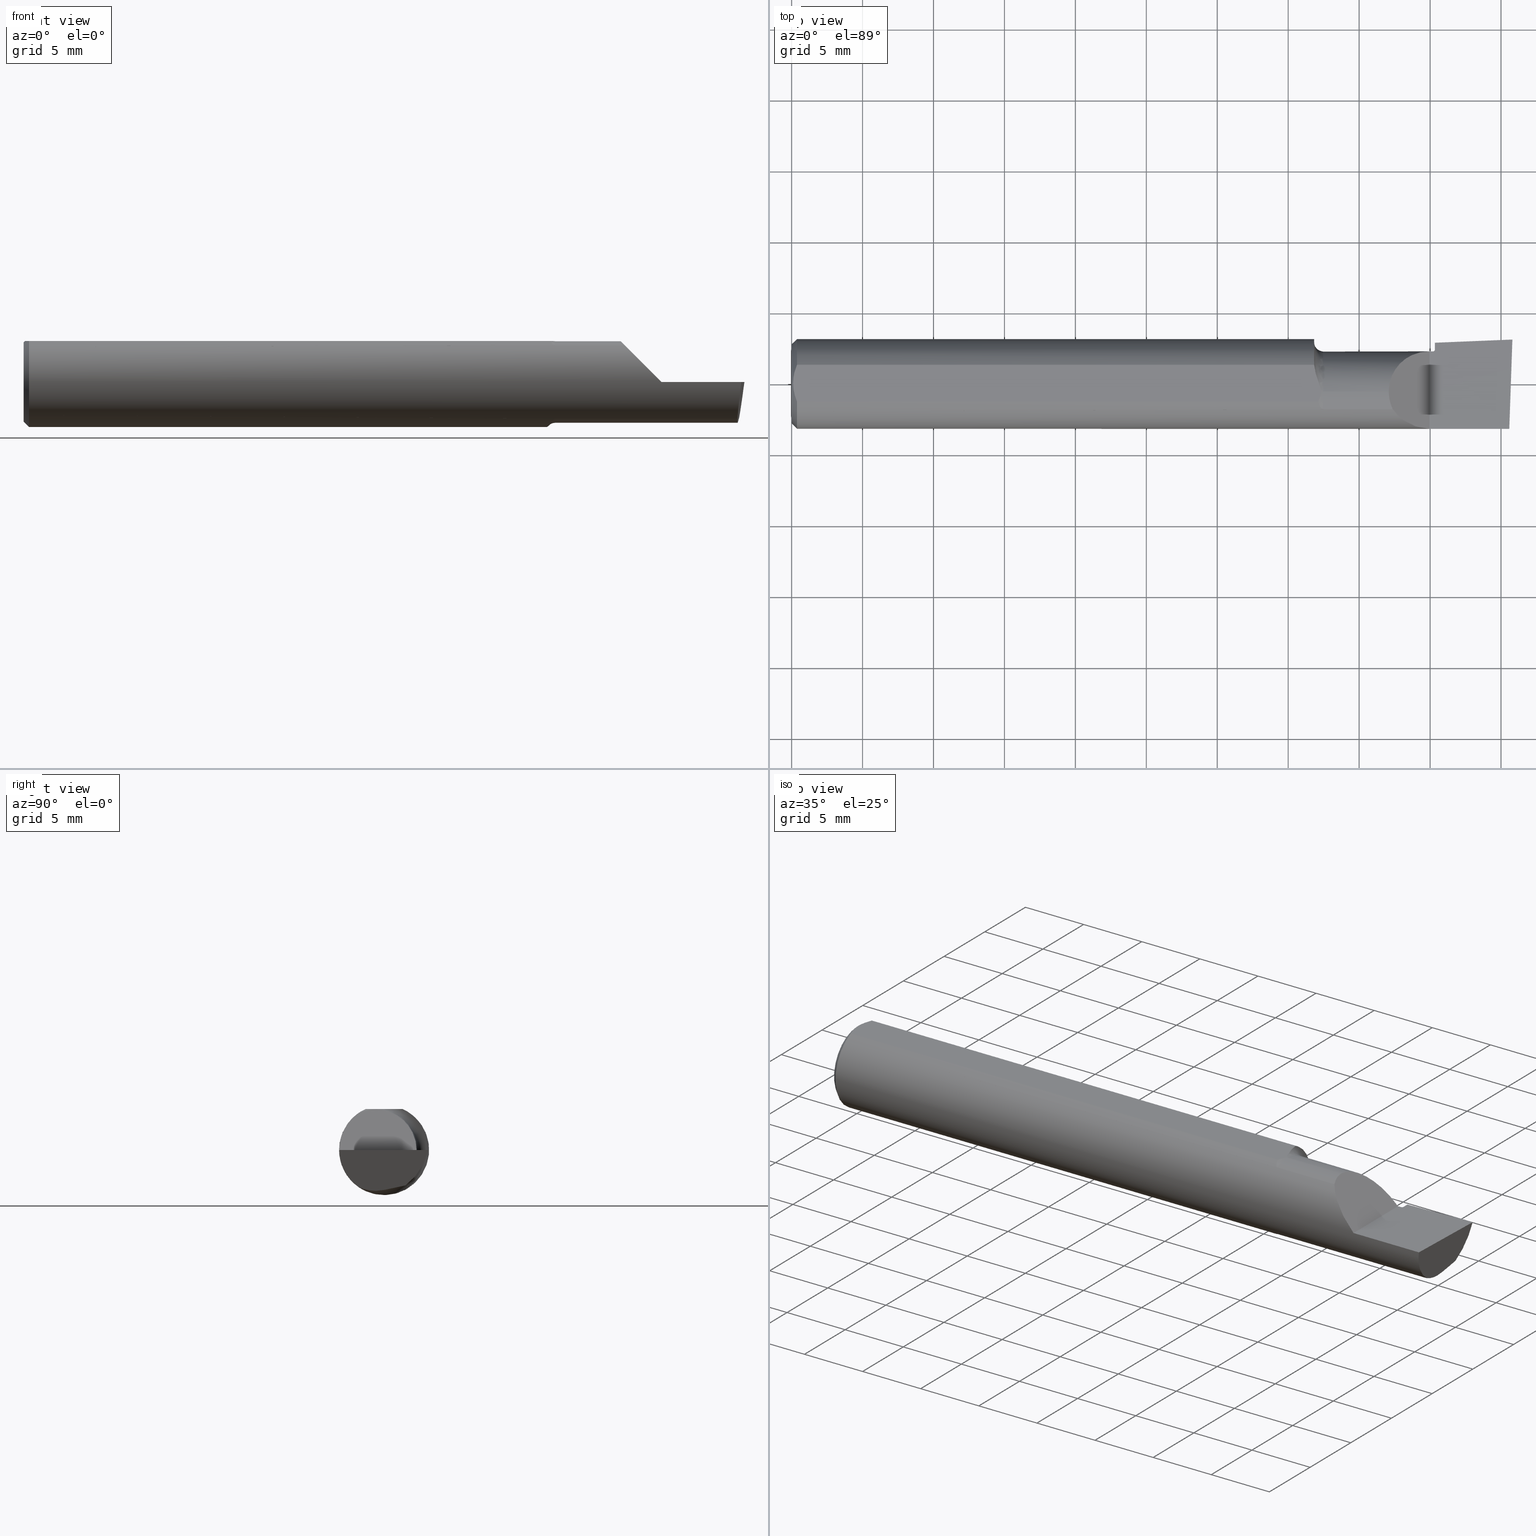
[diagram: canonical four-view strip — front | top / right | iso, engineering-drawing reading convention]
A machine part, canonical four-view strip (front | top / right | iso — engineering-drawing reading convention). The complete STEP part file that produces these views, byte-faithful:
ISO-10303-21;
HEADER;
FILE_DESCRIPTION (( 'STEP AP203' ),
    '1' );
FILE_NAME ('210282-BB254.STEP',
    '2024-04-17T22:52:11',
    ( '' ),
    ( '' ),
    'SwSTEP 2.0',
    'SolidWorks 2022',
    '' );
FILE_SCHEMA (( 'CONFIG_CONTROL_DESIGN' ));
ENDSEC;

DATA;
#1 = CARTESIAN_POINT ( 'NONE',  ( 2.000000000000000444, 0.1230320432091886601, 1.365923996832131609E-16 ) ) ;
#2 = VERTEX_POINT ( 'NONE', #699 ) ;
#3 = CARTESIAN_POINT ( 'NONE',  ( 1.982156700830108420, 0.0005252078160287397806, -0.1106774010230302391 ) ) ;
#4 = VECTOR ( 'NONE', #643, 39.37007874015748854 ) ;
#5 = AXIS2_PLACEMENT_3D ( 'NONE', #729, #134, #720 ) ;
#6 = APPROVAL_DATE_TIME ( #550, #528 ) ;
#7 = ORIENTED_EDGE ( 'NONE', *, *, #18, .F. ) ;
#8 = CARTESIAN_POINT ( 'NONE',  ( 1.450070113884647682, 0.05116999800896462891, -0.1141369429496938703 ) ) ;
#9 = CARTESIAN_POINT ( 'NONE',  ( 0.004000000000000036512, 1.339884691376347251E-16, 0.1138499999999999790 ) ) ;
#10 = ORIENTED_EDGE ( 'NONE', *, *, #310, .T. ) ;
#11 = CARTESIAN_POINT ( 'NONE',  ( 1.779999999999999805, -0.02299999999999999961, 0.000000000000000000 ) ) ;
#12 = CARTESIAN_POINT ( 'NONE',  ( 1.656999999999999806, -0.02688458484400722479, 0.1130999778995751964 ) ) ;
#13 = ORIENTED_EDGE ( 'NONE', *, *, #743, .F. ) ;
#14 = CARTESIAN_POINT ( 'NONE',  ( 1.952213385647788124, 0.05611622732575551054, -0.09886116505631198370 ) ) ;
#15 = AXIS2_PLACEMENT_3D ( 'NONE', #570, #175, #342 ) ;
#16 = DIRECTION ( 'NONE',  ( 0.000000000000000000, 0.000000000000000000, -1.000000000000000000 ) ) ;
#17 = DIRECTION ( 'NONE',  ( -1.000000000000000000, -0.000000000000000000, -0.000000000000000000 ) ) ;
#18 = EDGE_CURVE ( 'NONE', #745, #492, #162, .T. ) ;
#19 = CARTESIAN_POINT ( 'NONE',  ( 1.784999999999999698, 0.03378941772520620279, -0.1036068749380658210 ) ) ;
#20 = ADVANCED_FACE ( 'NONE', ( #503 ), #66, .F. ) ;
#21 = CARTESIAN_POINT ( 'NONE',  ( 1.656999999999999806, -0.1248500000000000026, -2.675152579924983035E-17 ) ) ;
#22 = ORIENTED_EDGE ( 'NONE', *, *, #518, .F. ) ;
#23 = LINE ( 'NONE', #69, #412 ) ;
#24 = DIRECTION ( 'NONE',  ( -1.000000000000000000, -0.000000000000000000, -0.000000000000000000 ) ) ;
#25 = DIRECTION ( 'NONE',  ( 1.000000000000000000, 0.000000000000000000, 0.000000000000000000 ) ) ;
#26 = CARTESIAN_POINT ( 'NONE',  ( 1.784999999999999698, 0.03378941772520620279, -0.1036068749380658210 ) ) ;
#27 = AXIS2_PLACEMENT_3D ( 'NONE', #732, #227, #207 ) ;
#28 = DIRECTION ( 'NONE',  ( 0.7071067811865441310, 0.000000000000000000, -0.7071067811865509034 ) ) ;
#29 = ORIENTED_EDGE ( 'NONE', *, *, #370, .T. ) ;
#30 = VERTEX_POINT ( 'NONE', #633 ) ;
#31 = DIRECTION ( 'NONE',  ( 0.000000000000000000, 0.000000000000000000, 1.000000000000000000 ) ) ;
#32 = ORIENTED_EDGE ( 'NONE', *, *, #45, .T. ) ;
#33 = AXIS2_PLACEMENT_3D ( 'NONE', #50, #275, #53 ) ;
#34 = B_SPLINE_CURVE_WITH_KNOTS ( 'NONE', 3,
 ( #537, #365, #708, #139, #532, #308, #300, #465, #250, #197, #127, #705 ),
 .UNSPECIFIED., .F., .F.,
 ( 4, 2, 2, 2, 2, 4 ),
 ( 1.967650712600235719E-07, 9.525325017818578929E-05, 0.0001903097352851115484, 0.0003804227054989511403, 0.0007606486459266314625, 0.001521100526781991131 ),
 .UNSPECIFIED. ) ;
#35 = VERTEX_POINT ( 'NONE', #694 ) ;
#36 = ADVANCED_FACE ( 'NONE', ( #690 ), #112, .T. ) ;
#37 = CARTESIAN_POINT ( 'NONE',  ( 1.656999999999999806, -0.02299999999999993369, 0.1130750000000003003 ) ) ;
#38 = PERSON_AND_ORGANIZATION_ROLE ( 'creator' ) ;
#39 = EDGE_LOOP ( 'NONE', ( #302, #258, #339, #649, #741, #710, #236 ) ) ;
#40 = CARTESIAN_POINT ( 'NONE',  ( 1.789291615022104320, 0.1143652283911643641, -2.675152579924983035E-17 ) ) ;
#41 = CARTESIAN_POINT ( 'NONE',  ( 1.981311885083313129, -0.01508616771999835363, -0.1131499999999999728 ) ) ;
#42 = APPLICATION_PROTOCOL_DEFINITION ( 'international standard', 'config_control_design', 1994, #379 ) ;
#43 = ORIENTED_EDGE ( 'NONE', *, *, #255, .T. ) ;
#44 = CARTESIAN_POINT ( 'NONE',  ( 1.456194170315906700, 0.01966653246187217291, 0.1138500000000000068 ) ) ;
#45 = EDGE_CURVE ( 'NONE', #507, #364, #502, .T. ) ;
#46 = CARTESIAN_POINT ( 'NONE',  ( 1.981037618911598353, -0.02299999999999998920, -0.1131499999999999451 ) ) ;
#47 = CIRCLE ( 'NONE', #423, 0.1248500000000000026 ) ;
#48 = PERSON_AND_ORGANIZATION_ROLE ( 'creator' ) ;
#49 = ORIENTED_EDGE ( 'NONE', *, *, #569, .T. ) ;
#50 = CARTESIAN_POINT ( 'NONE',  ( 1.449999999999999512, 0.1151499999999998913, 0.000000000000000000 ) ) ;
#51 = CARTESIAN_POINT ( 'NONE',  ( 1.656999999999999806, -0.02105770746417996372, 0.1131499999999999451 ) ) ;
#52 = ORIENTED_EDGE ( 'NONE', *, *, #68, .T. ) ;
#53 = DIRECTION ( 'NONE',  ( 0.000000000000000000, 0.000000000000000000, -1.000000000000000000 ) ) ;
#54 = PLANE ( 'NONE',  #636 ) ;
#55 = DIRECTION ( 'NONE',  ( -0.000000000000000000, 0.000000000000000000, -1.000000000000000000 ) ) ;
#56 = CARTESIAN_POINT ( 'NONE',  ( 1.656999999999999806, -0.02882430253333670075, 0.1130000000000006416 ) ) ;
#57 = AXIS2_PLACEMENT_3D ( 'NONE', #738, #497, #170 ) ;
#58 = VECTOR ( 'NONE', #176, 39.37007874015748143 ) ;
#59 = EDGE_CURVE ( 'NONE', #108, #35, #303, .T. ) ;
#60 = VERTEX_POINT ( 'NONE', #367 ) ;
#61 = CARTESIAN_POINT ( 'NONE',  ( 1.469125478741955426, -0.01974817578328879122, 0.1138500000000000068 ) ) ;
#62 = DIRECTION ( 'NONE',  ( -1.000000000000000000, -0.000000000000000000, -0.000000000000000000 ) ) ;
#63 = ORIENTED_EDGE ( 'NONE', *, *, #506, .F. ) ;
#64 = CARTESIAN_POINT ( 'NONE',  ( 0.000000000000000000, -0.02299999999999998920, -0.1131499999999999451 ) ) ;
#65 = DIRECTION ( 'NONE',  ( 0.000000000000000000, -1.000000000000000000, 0.000000000000000000 ) ) ;
#66 = PLANE ( 'NONE',  #474 ) ;
#67 = CARTESIAN_POINT ( 'NONE',  ( 1.851797773675369463, 0.04556048680043759541, -0.1011048569682544418 ) ) ;
#68 = EDGE_CURVE ( 'NONE', #315, #78, #583, .T. ) ;
#69 = CARTESIAN_POINT ( 'NONE',  ( 1.627499999999999503, -0.07203478260869596028, 0.1019730974057271450 ) ) ;
#70 = VECTOR ( 'NONE', #240, 39.37007874015748143 ) ;
#71 = DIRECTION ( 'NONE',  ( 0.000000000000000000, 0.000000000000000000, 1.000000000000000000 ) ) ;
#72 = CARTESIAN_POINT ( 'NONE',  ( 1.450099858026828503, 0.05124158467494938085, 0.1138499999999999790 ) ) ;
#73 = CYLINDRICAL_SURFACE ( 'NONE', #228, 0.1131499999999999451 ) ;
#74 = VERTEX_POINT ( 'NONE', #525 ) ;
#75 = CC_DESIGN_DATE_AND_TIME_ASSIGNMENT ( #323, #215, ( #462 ) ) ;
#76 = CARTESIAN_POINT ( 'NONE',  ( 1.473776651091018852, -0.07203478260871090666, 0.1019730974057168615 ) ) ;
#77 = CARTESIAN_POINT ( 'NONE',  ( 0.000000000000000000, 0.000000000000000000, 0.000000000000000000 ) ) ;
#78 = VERTEX_POINT ( 'NONE', #19 ) ;
#79 = B_SPLINE_CURVE_WITH_KNOTS ( 'NONE', 3,
 ( #173, #397, #634, #325, #44, #271, #217, #439, #695, #574, #61, #406 ),
 .UNSPECIFIED., .F., .F.,
 ( 4, 2, 2, 2, 2, 4 ),
 ( 0.01180676251349892063, 0.01228781726753095695, 0.01276887202156299500, 0.01324992677559503132, 0.01349045415261104948, 0.01373098152962706764 ),
 .UNSPECIFIED. ) ;
#80 = CARTESIAN_POINT ( 'NONE',  ( 1.469125478741925228, -0.02795346128119784168, 0.1138500000000000206 ) ) ;
#81 = VECTOR ( 'NONE', #639, 39.37007874015748143 ) ;
#82 =( NAMED_UNIT ( * ) SI_UNIT ( $, .STERADIAN. ) SOLID_ANGLE_UNIT ( ) );
#83 = CARTESIAN_POINT ( 'NONE',  ( 1.981037618911598353, -0.02299999999999998920, -0.1131499999999999451 ) ) ;
#84 = DIRECTION ( 'NONE',  ( -1.000000000000000000, -0.000000000000000000, -0.000000000000000000 ) ) ;
#85 = ORIENTED_EDGE ( 'NONE', *, *, #542, .T. ) ;
#86 = EDGE_CURVE ( 'NONE', #609, #130, #535, .T. ) ;
#87 = CARTESIAN_POINT ( 'NONE',  ( 0.004000000000000036512, 1.339884691376347251E-16, 0.1138499999999999790 ) ) ;
#88 = VERTEX_POINT ( 'NONE', #72 ) ;
#89 = LOCAL_TIME ( 15, 52, 11.00000000000000000, #674 ) ;
#90 = CARTESIAN_POINT ( 'NONE',  ( 2.000000000000000000, 0.0005252078160287398890, -0.1106774010230302391 ) ) ;
#91 = APPROVAL_STATUS ( 'not_yet_approved' ) ;
#92 = ORIENTED_EDGE ( 'NONE', *, *, #429, .T. ) ;
#93 = CARTESIAN_POINT ( 'NONE',  ( 1.980336203196702893, -0.05667042965035926083, -0.1093612000171224480 ) ) ;
#94 = SECURITY_CLASSIFICATION_LEVEL ( 'unclassified' ) ;
#95 = ORIENTED_EDGE ( 'NONE', *, *, #248, .T. ) ;
#96 = CARTESIAN_POINT ( 'NONE',  ( 1.991409262084114173, -0.1248500000000000026, -2.675152579924983035E-17 ) ) ;
#97 = CYLINDRICAL_SURFACE ( 'NONE', #27, 0.1131499999999999451 ) ;
#98 = APPROVAL_STATUS ( 'not_yet_approved' ) ;
#99 = ORIENTED_EDGE ( 'NONE', *, *, #509, .F. ) ;
#100 = CARTESIAN_POINT ( 'NONE',  ( 1.449999999999999512, 0.05806958520228852616, -0.1107817841451746860 ) ) ;
#101 = VECTOR ( 'NONE', #239, 39.37007874015748143 ) ;
#102 = APPROVAL_PERSON_ORGANIZATION ( #155, #177, #327 ) ;
#103 = COORDINATED_UNIVERSAL_TIME_OFFSET ( 8, 0, .BEHIND. ) ;
#104 = ORIENTED_EDGE ( 'NONE', *, *, #464, .T. ) ;
#105 = APPROVAL ( #273, 'UNSPECIFIED' ) ;
#106 = CARTESIAN_POINT ( 'NONE',  ( 1.455335200714347854, -0.02300000000004108133, -0.1227131716646510246 ) ) ;
#107 = DIRECTION ( 'NONE',  ( 1.000000000000000000, -0.000000000000000000, -0.000000000000000000 ) ) ;
#108 = VERTEX_POINT ( 'NONE', #417 ) ;
#109 = FACE_OUTER_BOUND ( 'NONE', #289, .T. ) ;
#110 = DIRECTION ( 'NONE',  ( 0.000000000000000000, 0.000000000000000000, 1.000000000000000000 ) ) ;
#111 = EDGE_CURVE ( 'NONE', #451, #315, #586, .T. ) ;
#112 = CYLINDRICAL_SURFACE ( 'NONE', #115, 0.1248500000000000026 ) ;
#113 = DIRECTION ( 'NONE',  ( 0.000000000000000000, 0.000000000000000000, -1.000000000000000000 ) ) ;
#114 = CARTESIAN_POINT ( 'NONE',  ( 0.01499999999999997689, 0.000000000000000000, 0.000000000000000000 ) ) ;
#115 = AXIS2_PLACEMENT_3D ( 'NONE', #637, #624, #565 ) ;
#116 = CIRCLE ( 'NONE', #736, 0.1131499999999999589 ) ;
#117 = LOCAL_TIME ( 15, 52, 11.00000000000000000, #103 ) ;
#118 = ORIENTED_EDGE ( 'NONE', *, *, #171, .F. ) ;
#119 = CARTESIAN_POINT ( 'NONE',  ( 1.461205118362342681, -0.05124158467487750779, 0.1138499999999999790 ) ) ;
#120 = CARTESIAN_POINT ( 'NONE',  ( 0.01499999999999997689, 0.000000000000000000, -0.1248500000000000026 ) ) ;
#121 = CC_DESIGN_DATE_AND_TIME_ASSIGNMENT ( #733, #376, ( #328 ) ) ;
#122 = EDGE_LOOP ( 'NONE', ( #383, #85, #416, #206, #478 ) ) ;
#123 = EDGE_CURVE ( 'NONE', #156, #269, #34, .T. ) ;
#124 = CARTESIAN_POINT ( 'NONE',  ( 2.000000000000000444, 0.1230320432091886601, 1.365923996832131609E-16 ) ) ;
#125 = FACE_OUTER_BOUND ( 'NONE', #220, .T. ) ;
#126 = DIRECTION ( 'NONE',  ( 0.000000000000000000, 0.000000000000000000, 1.000000000000000000 ) ) ;
#127 = CARTESIAN_POINT ( 'NONE',  ( 1.456744741688652311, -0.03258015406906940997, -0.1209175735181840794 ) ) ;
#128 = CIRCLE ( 'NONE', #575, 0.02499999999999993894 ) ;
#129 = CARTESIAN_POINT ( 'NONE',  ( 1.784999999999999698, 0.03724939420668419571, -0.1028714342337037485 ) ) ;
#130 = VERTEX_POINT ( 'NONE', #592 ) ;
#131 = ADVANCED_BREP_SHAPE_REPRESENTATION ( '210282-BB254', ( #319, #475 ), #251 ) ;
#132 = APPLICATION_CONTEXT ( 'configuration controlled 3d designs of mechanical parts and assemblies' ) ;
#133 = CARTESIAN_POINT ( 'NONE',  ( 1.461205118362342681, -0.05124158467487750779, 0.1138499999999999790 ) ) ;
#134 = DIRECTION ( 'NONE',  ( -1.000000000000000000, -0.000000000000000000, -0.000000000000000000 ) ) ;
#135 = ORIENTED_EDGE ( 'NONE', *, *, #318, .T. ) ;
#136 = CARTESIAN_POINT ( 'NONE',  ( 1.999651453384543975, 0.1129748807117507969, -2.675152579924983035E-17 ) ) ;
#137 =( NAMED_UNIT ( * ) PLANE_ANGLE_UNIT ( ) SI_UNIT ( $, .RADIAN. ) );
#138 = ORIENTED_EDGE ( 'NONE', *, *, #430, .F. ) ;
#139 = CARTESIAN_POINT ( 'NONE',  ( 1.470623728094753613, -0.07022883389308741398, -0.1032282467206300791 ) ) ;
#140 = TOROIDAL_SURFACE ( 'NONE', #422, 0.1381499999999998840, 0.02499999999999992853 ) ;
#141 = ORIENTED_EDGE ( 'NONE', *, *, #557, .F. ) ;
#142 = LOCAL_TIME ( 15, 52, 11.00000000000000000, #629 ) ;
#143 = ORIENTED_EDGE ( 'NONE', *, *, #464, .F. ) ;
#144 = ADVANCED_FACE ( 'NONE', ( #297 ), #184, .T. ) ;
#145 = EDGE_CURVE ( 'NONE', #455, #630, #659, .T. ) ;
#146 = ORIENTED_EDGE ( 'NONE', *, *, #453, .F. ) ;
#147 = PERSON_AND_ORGANIZATION ( #603, #669 ) ;
#148 = EDGE_LOOP ( 'NONE', ( #373, #545 ) ) ;
#149 = VECTOR ( 'NONE', #183, 39.37007874015748854 ) ;
#150 = CARTESIAN_POINT ( 'NONE',  ( 0.01499999999999997689, 0.000000000000000000, 0.000000000000000000 ) ) ;
#151 = CALENDAR_DATE ( 2024, 17, 4 ) ;
#152 = ORIENTED_EDGE ( 'NONE', *, *, #486, .F. ) ;
#153 = CARTESIAN_POINT ( 'NONE',  ( 0.01499999999999997689, 0.05124158467494933922, 0.1138499999999999790 ) ) ;
#154 = DIRECTION ( 'NONE',  ( -1.000000000000000000, 0.000000000000000000, 0.000000000000000000 ) ) ;
#155 = PERSON_AND_ORGANIZATION ( #603, #669 ) ;
#156 = VERTEX_POINT ( 'NONE', #293 ) ;
#157 = ADVANCED_FACE ( 'NONE', ( #253 ), #433, .T. ) ;
#158 = DIRECTION ( 'NONE',  ( 0.000000000000000000, 0.000000000000000000, 1.000000000000000000 ) ) ;
#159 = LINE ( 'NONE', #163, #306 ) ;
#160 = ORIENTED_EDGE ( 'NONE', *, *, #557, .T. ) ;
#161 = CARTESIAN_POINT ( 'NONE',  ( 1.865249755877900206, 0.1174932720492049554, -2.675152579924983035E-17 ) ) ;
#162 = CIRCLE ( 'NONE', #15, 0.1098499999999999199 ) ;
#163 = CARTESIAN_POINT ( 'NONE',  ( 1.627499999999999503, -0.07203478260869596028, -0.1019730974057271450 ) ) ;
#164 = PRODUCT_DEFINITION_FORMATION_WITH_SPECIFIED_SOURCE ( 'ANY', '', #468, .NOT_KNOWN. ) ;
#165 = B_SPLINE_CURVE_WITH_KNOTS ( 'NONE', 3,
 ( #26, #722, #421, #201, #204, #304 ),
 .UNSPECIFIED., .F., .F.,
 ( 4, 2, 4 ),
 ( 0.0004373229644671773717, 0.0008784446196039099892, 0.001319566274740642444 ),
 .UNSPECIFIED. ) ;
#166 = PERSON_AND_ORGANIZATION ( #603, #669 ) ;
#167 = CARTESIAN_POINT ( 'NONE',  ( 1.463892872481411978, -0.05957715690949611648, 0.1098069827681459332 ) ) ;
#168 = CARTESIAN_POINT ( 'NONE',  ( 1.706393624378059748, 0.09014999999999998015, 0.06360637562194031147 ) ) ;
#169 = ADVANCED_FACE ( 'NONE', ( #125 ), #698, .T. ) ;
#170 = DIRECTION ( 'NONE',  ( -0.000000000000000000, 0.000000000000000000, 1.000000000000000000 ) ) ;
#171 = EDGE_CURVE ( 'NONE', #364, #324, #23, .T. ) ;
#172 = VERTEX_POINT ( 'NONE', #595 ) ;
#173 = CARTESIAN_POINT ( 'NONE',  ( 1.450099858026828503, 0.05124158467494938085, 0.1138499999999999790 ) ) ;
#174 = CARTESIAN_POINT ( 'NONE',  ( 0.01165733727326997635, -0.04309719483846850135, 0.1138500000000000068 ) ) ;
#175 = DIRECTION ( 'NONE',  ( -1.000000000000000000, -0.000000000000000000, -0.000000000000000000 ) ) ;
#176 = DIRECTION ( 'NONE',  ( -1.000000000000000000, -0.000000000000000000, -0.000000000000000000 ) ) ;
#177 = APPROVAL ( #98, 'UNSPECIFIED' ) ;
#178 = CARTESIAN_POINT ( 'NONE',  ( 1.784999999999999698, 0.03724939420668419571, -0.1028714342337037485 ) ) ;
#179 = CIRCLE ( 'NONE', #461, 0.1248500000000000026 ) ;
#180 = EDGE_CURVE ( 'NONE', #407, #507, #605, .T. ) ;
#181 = ORIENTED_EDGE ( 'NONE', *, *, #743, .T. ) ;
#182 = CARTESIAN_POINT ( 'NONE',  ( 1.784999999999999698, -0.02299999999999999961, 0.000000000000000000 ) ) ;
#183 = DIRECTION ( 'NONE',  ( 0.05933815604225937956, 0.9764240451797694398, 0.2075453377753393447 ) ) ;
#184 = PLANE ( 'NONE',  #401 ) ;
#185 = CARTESIAN_POINT ( 'NONE',  ( 1.474999999999999423, -0.02299999999999999961, 0.000000000000000000 ) ) ;
#186 = ORIENTED_EDGE ( 'NONE', *, *, #718, .T. ) ;
#187 = DIRECTION ( 'NONE',  ( 1.000000000000000000, 0.000000000000000000, 0.000000000000000000 ) ) ;
#188 = FACE_OUTER_BOUND ( 'NONE', #252, .T. ) ;
#189 = EDGE_LOOP ( 'NONE', ( #418, #329, #728, #244, #143, #640 ) ) ;
#190 = VECTOR ( 'NONE', #716, 39.37007874015748854 ) ;
#191 = DIRECTION ( 'NONE',  ( 1.000000000000000000, -0.000000000000000000, -0.000000000000000000 ) ) ;
#192 = CARTESIAN_POINT ( 'NONE',  ( 1.980711417153110165, -0.07203478260869596028, -0.1019730974057271450 ) ) ;
#193 = VERTEX_POINT ( 'NONE', #3 ) ;
#194 = EDGE_CURVE ( 'NONE', #2, #60, #646, .T. ) ;
#195 = CARTESIAN_POINT ( 'NONE',  ( 1.449999999999999512, -0.02299999999999999961, 0.000000000000000000 ) ) ;
#196 = ORIENTED_EDGE ( 'NONE', *, *, #68, .F. ) ;
#197 = CARTESIAN_POINT ( 'NONE',  ( 1.458487116312507936, -0.04186477887254739377, -0.1180024678386715625 ) ) ;
#198 = DIRECTION ( 'NONE',  ( 0.000000000000000000, -1.707404996040168702E-16, 1.000000000000000000 ) ) ;
#199 = ADVANCED_FACE ( 'NONE', ( #375 ), #54, .T. ) ;
#200 = VECTOR ( 'NONE', #225, 39.37007874015748143 ) ;
#201 = CARTESIAN_POINT ( 'NONE',  ( 1.782368003253963495, 0.01152075647586471574, -0.1083402250062201616 ) ) ;
#202 = ORIENTED_EDGE ( 'NONE', *, *, #299, .F. ) ;
#203 = VECTOR ( 'NONE', #343, 39.37007874015748143 ) ;
#204 = CARTESIAN_POINT ( 'NONE',  ( 1.781190844818016261, 0.006066600674515307441, -0.1094995416101676028 ) ) ;
#205 = ORIENTED_EDGE ( 'NONE', *, *, #652, .F. ) ;
#206 = ORIENTED_EDGE ( 'NONE', *, *, #628, .F. ) ;
#207 = DIRECTION ( 'NONE',  ( 0.000000000000000000, 0.000000000000000000, 1.000000000000000000 ) ) ;
#208 = COORDINATED_UNIVERSAL_TIME_OFFSET ( 8, 0, .BEHIND. ) ;
#209 = ORIENTED_EDGE ( 'NONE', *, *, #682, .F. ) ;
#210 = CARTESIAN_POINT ( 'NONE',  ( 1.769999999999999352, -0.1248500000000000026, -2.675152579924983035E-17 ) ) ;
#211 = APPROVAL_PERSON_ORGANIZATION ( #670, #105, #617 ) ;
#212 = TOROIDAL_SURFACE ( 'NONE', #622, 0.1181499999999999356, 0.004999999999999912501 ) ;
#213 = DIRECTION ( 'NONE',  ( 0.1219414168599300269, 0.000000000000000000, 0.9925372994775525370 ) ) ;
#214 = ADVANCED_FACE ( 'NONE', ( #317 ), #558, .F. ) ;
#215 = DATE_TIME_ROLE ( 'classification_date' ) ;
#216 = EDGE_LOOP ( 'NONE', ( #483, #347 ) ) ;
#217 = CARTESIAN_POINT ( 'NONE',  ( 1.462649919956250821, 0.001411420734820286686, 0.1138499999999999790 ) ) ;
#218 = CARTESIAN_POINT ( 'NONE',  ( 1.668026902594271554, -0.07203478260869308758, 0.1019730974057288381 ) ) ;
#219 = APPROVAL_DATE_TIME ( #611, #105 ) ;
#220 = EDGE_LOOP ( 'NONE', ( #202, #721, #717, #92 ) ) ;
#221 = CARTESIAN_POINT ( 'NONE',  ( 1.450676465447388930, 0.02961761747730576322, -0.1215215819150392701 ) ) ;
#222 = CARTESIAN_POINT ( 'NONE',  ( 1.991409262084114173, -0.1248500000000000026, -2.675152579924983035E-17 ) ) ;
#223 = ADVANCED_FACE ( 'NONE', ( #262 ), #615, .F. ) ;
#224 = CARTESIAN_POINT ( 'NONE',  ( 1.461205118362342681, -0.05124158467487750779, 0.1138499999999999790 ) ) ;
#225 = DIRECTION ( 'NONE',  ( 1.000000000000000000, 0.000000000000000000, 0.000000000000000000 ) ) ;
#226 = ADVANCED_FACE ( 'NONE', ( #380 ), #559, .T. ) ;
#227 = DIRECTION ( 'NONE',  ( -1.000000000000000000, -0.000000000000000000, -0.000000000000000000 ) ) ;
#228 = AXIS2_PLACEMENT_3D ( 'NONE', #254, #477, #31 ) ;
#229 = MECHANICAL_CONTEXT ( 'NONE', #379, 'mechanical' ) ;
#230 = ORIENTED_EDGE ( 'NONE', *, *, #568, .T. ) ;
#231 = CARTESIAN_POINT ( 'NONE',  ( 1.784999999999999698, 0.1141884658606290570, -2.561107494060246767E-17 ) ) ;
#232 = CARTESIAN_POINT ( 'NONE',  ( 0.01499999999999889096, -0.05124158467495320418, 0.1138499999999999790 ) ) ;
#233 = VERTEX_POINT ( 'NONE', #627 ) ;
#234 = LINE ( 'NONE', #287, #70 ) ;
#235 = DIRECTION ( 'NONE',  ( 0.000000000000000000, 0.000000000000000000, 1.000000000000000000 ) ) ;
#236 = ORIENTED_EDGE ( 'NONE', *, *, #371, .T. ) ;
#237 = LINE ( 'NONE', #635, #149 ) ;
#238 = TOROIDAL_SURFACE ( 'NONE', #330, 0.1381499999999998840, 0.02499999999999992853 ) ;
#239 = DIRECTION ( 'NONE',  ( 1.000000000000000000, 0.000000000000000000, 0.000000000000000000 ) ) ;
#240 = DIRECTION ( 'NONE',  ( 0.7071067811865451302, 0.000000000000000000, -0.7071067811865499042 ) ) ;
#241 = CC_DESIGN_PERSON_AND_ORGANIZATION_ASSIGNMENT ( #491, #608, ( #468 ) ) ;
#242 = DIRECTION ( 'NONE',  ( 0.000000000000000000, 0.000000000000000000, 1.000000000000000000 ) ) ;
#243 = CARTESIAN_POINT ( 'NONE',  ( 1.450099858026828503, 0.05124158467494938085, 0.1138499999999999790 ) ) ;
#244 = ORIENTED_EDGE ( 'NONE', *, *, #278, .F. ) ;
#245 = CARTESIAN_POINT ( 'NONE',  ( 1.467730992247341382, -0.03274307989214254866, 0.1138499999999999651 ) ) ;
#246 = ADVANCED_FACE ( 'NONE', ( #276 ), #97, .T. ) ;
#247 = DIRECTION ( 'NONE',  ( 0.000000000000000000, -1.000000000000000000, 0.000000000000000000 ) ) ;
#248 = EDGE_CURVE ( 'NONE', #555, #666, #653, .T. ) ;
#249 = CIRCLE ( 'NONE', #668, 0.02499999999999993894 ) ;
#250 = CARTESIAN_POINT ( 'NONE',  ( 1.462249887258994629, -0.05485735360116764797, -0.1122524973548136851 ) ) ;
#251 =( GEOMETRIC_REPRESENTATION_CONTEXT ( 3 ) GLOBAL_UNCERTAINTY_ASSIGNED_CONTEXT ( ( #427 ) ) GLOBAL_UNIT_ASSIGNED_CONTEXT ( ( #257, #137, #82 ) ) REPRESENTATION_CONTEXT ( 'NONE', 'WORKASPACE' ) );
#252 = EDGE_LOOP ( 'NONE', ( #527, #160, #446, #667, #551, #264, #350, #487, #658 ) ) ;
#253 = FACE_OUTER_BOUND ( 'NONE', #122, .T. ) ;
#254 = CARTESIAN_POINT ( 'NONE',  ( 0.000000000000000000, -0.02299999999999999961, 0.000000000000000000 ) ) ;
#255 = EDGE_CURVE ( 'NONE', #555, #455, #309, .T. ) ;
#256 = AXIS2_PLACEMENT_3D ( 'NONE', #496, #436, #742 ) ;
#257 =( CONVERSION_BASED_UNIT ( 'INCH', #544 ) LENGTH_UNIT ( ) NAMED_UNIT ( #540 ) );
#258 = ORIENTED_EDGE ( 'NONE', *, *, #430, .T. ) ;
#259 = TOROIDAL_SURFACE ( 'NONE', #435, 0.1381499999999998840, 0.02499999999999992853 ) ;
#260 = DIRECTION ( 'NONE',  ( 0.000000000000000000, 0.000000000000000000, -1.000000000000000000 ) ) ;
#261 = VERTEX_POINT ( 'NONE', #553 ) ;
#262 = FACE_OUTER_BOUND ( 'NONE', #723, .T. ) ;
#263 = CALENDAR_DATE ( 2024, 17, 4 ) ;
#264 = ORIENTED_EDGE ( 'NONE', *, *, #488, .T. ) ;
#265 = DIRECTION ( 'NONE',  ( 0.000000000000000000, 0.000000000000000000, 1.000000000000000000 ) ) ;
#266 = EDGE_CURVE ( 'NONE', #666, #193, #459, .T. ) ;
#267 = CARTESIAN_POINT ( 'NONE',  ( 1.982156700830108420, 0.0005252078160287397806, -0.1106774010230302391 ) ) ;
#268 = CALENDAR_DATE ( 2024, 17, 4 ) ;
#269 = VERTEX_POINT ( 'NONE', #689 ) ;
#270 = CIRCLE ( 'NONE', #447, 0.004999999999999810152 ) ;
#271 = CARTESIAN_POINT ( 'NONE',  ( 1.460335521868628916, 0.007462837152791067935, 0.1138500000000000206 ) ) ;
#272 = CARTESIAN_POINT ( 'NONE',  ( 1.981037618911598353, -0.02299999999999998920, -0.1131499999999999451 ) ) ;
#273 = APPROVAL_STATUS ( 'not_yet_approved' ) ;
#274 = EDGE_LOOP ( 'NONE', ( #715, #186, #99, #425 ) ) ;
#275 = DIRECTION ( 'NONE',  ( 1.000000000000000000, 0.000000000000000000, 0.000000000000000000 ) ) ;
#276 = FACE_OUTER_BOUND ( 'NONE', #665, .T. ) ;
#277 = ADVANCED_FACE ( 'NONE', ( #494 ), #437, .T. ) ;
#278 = EDGE_CURVE ( 'NONE', #324, #369, #338, .T. ) ;
#279 = ORIENTED_EDGE ( 'NONE', *, *, #59, .F. ) ;
#280 = PLANE ( 'NONE',  #33 ) ;
#281 = CARTESIAN_POINT ( 'NONE',  ( 0.000000000000000000, 0.000000000000000000, 0.000000000000000000 ) ) ;
#282 = ORIENTED_EDGE ( 'NONE', *, *, #543, .T. ) ;
#283 = CYLINDRICAL_SURFACE ( 'NONE', #256, 0.1131499999999999451 ) ;
#284 = AXIS2_PLACEMENT_3D ( 'NONE', #414, #187, #353 ) ;
#285 = CARTESIAN_POINT ( 'NONE',  ( 1.656999999999999806, -0.02494229253581972672, 0.1131499999999999451 ) ) ;
#286 = EDGE_LOOP ( 'NONE', ( #428, #499, #656, #196, #495 ) ) ;
#287 = CARTESIAN_POINT ( 'NONE',  ( 0.01499999999999997689, 0.000000000000000000, -0.1248500000000000026 ) ) ;
#288 = CARTESIAN_POINT ( 'NONE',  ( 0.004000000000000024369, -0.008893328491875992017, 0.1138500000000000068 ) ) ;
#289 = EDGE_LOOP ( 'NONE', ( #141, #411, #645, #618 ) ) ;
#290 = LINE ( 'NONE', #21, #739 ) ;
#291 = DIRECTION ( 'NONE',  ( 0.000000000000000000, 0.000000000000000000, -1.000000000000000000 ) ) ;
#292 = EDGE_CURVE ( 'NONE', #555, #156, #159, .T. ) ;
#293 = CARTESIAN_POINT ( 'NONE',  ( 1.474999999999999423, -0.07203478260869586314, -0.1019730974057272144 ) ) ;
#294 = CARTESIAN_POINT ( 'NONE',  ( 1.784999999999999698, 0.09514999999999994296, 0.000000000000000000 ) ) ;
#295 = AXIS2_PLACEMENT_3D ( 'NONE', #467, #191, #16 ) ;
#296 = CIRCLE ( 'NONE', #597, 0.1098499999999999199 ) ;
#297 = FACE_OUTER_BOUND ( 'NONE', #189, .T. ) ;
#298 = DIRECTION ( 'NONE',  ( -1.000000000000000000, -0.000000000000000000, -0.000000000000000000 ) ) ;
#299 = EDGE_CURVE ( 'NONE', #172, #630, #707, .T. ) ;
#300 = CARTESIAN_POINT ( 'NONE',  ( 1.466609878910481335, -0.06497525245387225645, -0.1066343742893664098 ) ) ;
#301 = CARTESIAN_POINT ( 'NONE',  ( 1.474999999999999423, -0.02299999999999999961, 0.000000000000000000 ) ) ;
#302 = ORIENTED_EDGE ( 'NONE', *, *, #697, .F. ) ;
#303 = LINE ( 'NONE', #647, #101 ) ;
#304 = CARTESIAN_POINT ( 'NONE',  ( 1.779999999999999805, 0.0005252078160287186387, -0.1106774010230301836 ) ) ;
#305 = VERTEX_POINT ( 'NONE', #444 ) ;
#306 = VECTOR ( 'NONE', #620, 39.37007874015748143 ) ;
#307 = CC_DESIGN_PERSON_AND_ORGANIZATION_ASSIGNMENT ( #678, #740, ( #462 ) ) ;
#308 = CARTESIAN_POINT ( 'NONE',  ( 1.467687609778401736, -0.06685741837867847925, -0.1054600140428192667 ) ) ;
#309 =( BOUNDED_CURVE ( )  B_SPLINE_CURVE ( 3, ( #610, #322, #501, #222 ),
 .UNSPECIFIED., .F., .T. ) 
 B_SPLINE_CURVE_WITH_KNOTS ( ( 4, 4 ),
 ( 0.3400731368317720937, 1.295854645076544687 ),
 .UNSPECIFIED. ) 
 CURVE ( )  GEOMETRIC_REPRESENTATION_ITEM ( )  RATIONAL_B_SPLINE_CURVE ( ( 1.000000000000000000, 0.9253113031975114255, 0.9253113031975114255, 1.000000000000000000 ) ) 
 REPRESENTATION_ITEM ( '' )  );
#310 = EDGE_CURVE ( 'NONE', #193, #172, #237, .T. ) ;
#311 = CARTESIAN_POINT ( 'NONE',  ( 1.474999999999999423, -0.02299999999999998226, -0.1381499999999998840 ) ) ;
#312 = ORIENTED_EDGE ( 'NONE', *, *, #682, .T. ) ;
#313 = AXIS2_PLACEMENT_3D ( 'NONE', #195, #362, #242 ) ;
#314 = LINE ( 'NONE', #424, #524 ) ;
#315 = VERTEX_POINT ( 'NONE', #178 ) ;
#316 = CIRCLE ( 'NONE', #685, 0.1131499999999999589 ) ;
#317 = FACE_OUTER_BOUND ( 'NONE', #675, .T. ) ;
#318 = EDGE_CURVE ( 'NONE', #74, #30, #522, .T. ) ;
#319 = MANIFOLD_SOLID_BREP ( 'Front', #650 ) ;
#320 = APPLICATION_PROTOCOL_DEFINITION ( 'international standard', 'config_control_design', 1994, #132 ) ;
#321 = ORIENTED_EDGE ( 'NONE', *, *, #697, .T. ) ;
#322 = CARTESIAN_POINT ( 'NONE',  ( 1.982472901410195831, -0.1058238923506804735, -0.07810414337051783951 ) ) ;
#323 = DATE_AND_TIME ( #334, #117 ) ;
#324 = VERTEX_POINT ( 'NONE', #514 ) ;
#325 = CARTESIAN_POINT ( 'NONE',  ( 1.454329718837755747, 0.02583075694165800143, 0.1138499999999999512 ) ) ;
#326 = CARTESIAN_POINT ( 'NONE',  ( 1.955238188985510828, 0.1245951600936585635, -0.3647779084914555825 ) ) ;
#327 = APPROVAL_ROLE ( '' ) ;
#328 = PRODUCT_DEFINITION ( 'UNKNOWN', '', #164, #727 ) ;
#329 = ORIENTED_EDGE ( 'NONE', *, *, #194, .F. ) ;
#330 = AXIS2_PLACEMENT_3D ( 'NONE', #693, #463, #110 ) ;
#331 = CARTESIAN_POINT ( 'NONE',  ( 1.449999999999999512, 0.000000000000000000, 0.000000000000000000 ) ) ;
#332 = EDGE_CURVE ( 'NONE', #407, #233, #249, .T. ) ;
#333 = CARTESIAN_POINT ( 'NONE',  ( 1.656999999999999806, 0.1248500000000000026, -2.675152579924983035E-17 ) ) ;
#334 = CALENDAR_DATE ( 2024, 17, 4 ) ;
#335 = ORIENTED_EDGE ( 'NONE', *, *, #628, .T. ) ;
#336 = FACE_OUTER_BOUND ( 'NONE', #671, .T. ) ;
#337 = CARTESIAN_POINT ( 'NONE',  ( 1.656999999999999806, -0.01717569746666252131, 0.1130000000000006416 ) ) ;
#338 =( BOUNDED_CURVE ( )  B_SPLINE_CURVE ( 3, ( #218, #441, #677, #385 ),
 .UNSPECIFIED., .F., .T. ) 
 B_SPLINE_CURVE_WITH_KNOTS ( ( 4, 4 ),
 ( 5.834966614914089966, 6.231688377374378085 ),
 .UNSPECIFIED. ) 
 CURVE ( )  GEOMETRIC_REPRESENTATION_ITEM ( )  RATIONAL_B_SPLINE_CURVE ( ( 1.000000000000000000, 0.9869272691648760532, 0.9869272691648760532, 1.000000000000000000 ) ) 
 REPRESENTATION_ITEM ( '' )  );
#339 = ORIENTED_EDGE ( 'NONE', *, *, #86, .F. ) ;
#340 = CARTESIAN_POINT ( 'NONE',  ( 1.797874846902438817, 0.1147187088710839437, -2.675152579924983035E-17 ) ) ;
#341 = DIRECTION ( 'NONE',  ( 0.000000000000000000, 0.000000000000000000, -1.000000000000000000 ) ) ;
#342 = DIRECTION ( 'NONE',  ( 0.000000000000000000, 0.000000000000000000, -1.000000000000000000 ) ) ;
#343 = DIRECTION ( 'NONE',  ( 0.7071067811865451302, 8.659560562354962440E-17, 0.7071067811865499042 ) ) ;
#344 = AXIS2_PLACEMENT_3D ( 'NONE', #114, #398, #341 ) ;
#345 = CARTESIAN_POINT ( 'NONE',  ( 1.474999999999999423, -0.02299999999999999961, 0.000000000000000000 ) ) ;
#346 = CC_DESIGN_APPROVAL ( #105, ( #164 ) ) ;
#347 = ORIENTED_EDGE ( 'NONE', *, *, #711, .T. ) ;
#348 = CARTESIAN_POINT ( 'NONE',  ( 1.918719883305409768, 0.05278643763162971930, -0.09956893370477960803 ) ) ;
#349 = CARTESIAN_POINT ( 'NONE',  ( 1.469125478742641988, -0.02299999999992861921, 0.1138499999999999790 ) ) ;
#350 = ORIENTED_EDGE ( 'NONE', *, *, #59, .T. ) ;
#351 = CARTESIAN_POINT ( 'NONE',  ( 1.779999999999999805, -0.02299999999999999961, 0.000000000000000000 ) ) ;
#352 = B_SPLINE_CURVE_WITH_KNOTS ( 'NONE', 3,
 ( #576, #12, #285, #511 ),
 .UNSPECIFIED., .F., .F.,
 ( 4, 4 ),
 ( 0.000000000000000000, 0.4999999999999781286 ),
 .UNSPECIFIED. ) ;
#353 = DIRECTION ( 'NONE',  ( 0.000000000000000000, 0.000000000000000000, -1.000000000000000000 ) ) ;
#354 = CARTESIAN_POINT ( 'NONE',  ( 1.449999999999999512, 0.06454130434782547054, 0.1068734884481711278 ) ) ;
#355 = ORIENTED_EDGE ( 'NONE', *, *, #731, .T. ) ;
#356 = ADVANCED_FACE ( 'NONE', ( #519 ), #238, .F. ) ;
#357 = VECTOR ( 'NONE', #702, 39.37007874015748143 ) ;
#358 = EDGE_CURVE ( 'NONE', #30, #392, #388, .T. ) ;
#359 = CARTESIAN_POINT ( 'NONE',  ( 1.469125478742641988, -0.02299999999992861921, 0.1138499999999999790 ) ) ;
#360 = DIRECTION ( 'NONE',  ( 0.000000000000000000, 0.000000000000000000, 1.000000000000000000 ) ) ;
#361 = ORIENTED_EDGE ( 'NONE', *, *, #641, .T. ) ;
#362 = DIRECTION ( 'NONE',  ( -1.000000000000000000, -0.000000000000000000, -0.000000000000000000 ) ) ;
#363 = CARTESIAN_POINT ( 'NONE',  ( 0.005048877309342266438, 0.01758388412467034104, 0.1138499999999999790 ) ) ;
#364 = VERTEX_POINT ( 'NONE', #572 ) ;
#365 = CARTESIAN_POINT ( 'NONE',  ( 1.473732248422724656, -0.07203478260869577987, -0.1019730974057272838 ) ) ;
#366 = VECTOR ( 'NONE', #247, 39.37007874015748143 ) ;
#367 = CARTESIAN_POINT ( 'NONE',  ( 1.656999999999999806, -0.01717569746666252131, 0.1130000000000006416 ) ) ;
#368 = ORIENTED_EDGE ( 'NONE', *, *, #111, .T. ) ;
#369 = VERTEX_POINT ( 'NONE', #56 ) ;
#370 = EDGE_CURVE ( 'NONE', #369, #2, #352, .T. ) ;
#371 = EDGE_CURVE ( 'NONE', #233, #261, #116, .T. ) ;
#372 = DIRECTION ( 'NONE',  ( 0.000000000000000000, 0.000000000000000000, 1.000000000000000000 ) ) ;
#373 = ORIENTED_EDGE ( 'NONE', *, *, #420, .T. ) ;
#374 = AXIS2_PLACEMENT_3D ( 'NONE', #593, #481, #661 ) ;
#375 = FACE_OUTER_BOUND ( 'NONE', #286, .T. ) ;
#376 = DATE_TIME_ROLE ( 'creation_date' ) ;
#377 = ORIENTED_EDGE ( 'NONE', *, *, #591, .T. ) ;
#378 = DIRECTION ( 'NONE',  ( -1.000000000000000000, 0.000000000000000000, 0.000000000000000000 ) ) ;
#379 = APPLICATION_CONTEXT ( 'configuration controlled 3d designs of mechanical parts and assemblies' ) ;
#380 = FACE_OUTER_BOUND ( 'NONE', #734, .T. ) ;
#381 = COORDINATED_UNIVERSAL_TIME_OFFSET ( 8, 0, .BEHIND. ) ;
#382 = EDGE_CURVE ( 'NONE', #193, #434, #457, .T. ) ;
#383 = ORIENTED_EDGE ( 'NONE', *, *, #711, .F. ) ;
#384 = FACE_OUTER_BOUND ( 'NONE', #148, .T. ) ;
#385 = CARTESIAN_POINT ( 'NONE',  ( 1.656999999999999806, -0.02882430253333670075, 0.1130000000000006416 ) ) ;
#386 = PERSON_AND_ORGANIZATION_ROLE ( 'design_supplier' ) ;
#387 = CARTESIAN_POINT ( 'NONE',  ( 0.000000000000000000, 0.06250000000000000000, 0.1138499999999999790 ) ) ;
#388 = CIRCLE ( 'NONE', #344, 0.1248500000000000026 ) ;
#389 = CARTESIAN_POINT ( 'NONE',  ( 1.660274085503059771, 0.04634635684424533164, 0.1097259144969406908 ) ) ;
#390 = CARTESIAN_POINT ( 'NONE',  ( 1.989836728749098116, 0.09206796351314358584, -0.07398901831240398130 ) ) ;
#391 = PERSON_AND_ORGANIZATION ( #603, #669 ) ;
#392 = VERTEX_POINT ( 'NONE', #120 ) ;
#393 = CC_DESIGN_PERSON_AND_ORGANIZATION_ASSIGNMENT ( #166, #38, ( #328 ) ) ;
#394 = CARTESIAN_POINT ( 'NONE',  ( 1.668026902594271554, -0.07203478260869308758, 0.1019730974057288381 ) ) ;
#395 = DIRECTION ( 'NONE',  ( -0.9919506264397697226, 0.03437759245050123896, 0.1218693392246629065 ) ) ;
#396 = ORIENTED_EDGE ( 'NONE', *, *, #542, .F. ) ;
#397 = CARTESIAN_POINT ( 'NONE',  ( 1.450413920054870465, 0.04482795582615921315, 0.1138500000000000068 ) ) ;
#398 = DIRECTION ( 'NONE',  ( 1.000000000000000000, -0.000000000000000000, -0.000000000000000000 ) ) ;
#399 = ORIENTED_EDGE ( 'NONE', *, *, #332, .F. ) ;
#400 = LINE ( 'NONE', #530, #203 ) ;
#401 = AXIS2_PLACEMENT_3D ( 'NONE', #657, #419, #28 ) ;
#402 = CARTESIAN_POINT ( 'NONE',  ( 2.000000000000000000, 0.0005252078160287398890, -0.1106774010230302391 ) ) ;
#403 = DIRECTION ( 'NONE',  ( -1.000000000000000000, 0.000000000000000000, 0.000000000000000000 ) ) ;
#404 = DIRECTION ( 'NONE',  ( 0.000000000000000000, 0.000000000000000000, 1.000000000000000000 ) ) ;
#405 = DIRECTION ( 'NONE',  ( 0.000000000000000000, 0.000000000000000000, 1.000000000000000000 ) ) ;
#406 = CARTESIAN_POINT ( 'NONE',  ( 1.469125478742641988, -0.02299999999992861921, 0.1138499999999999790 ) ) ;
#407 = VERTEX_POINT ( 'NONE', #349 ) ;
#408 = ADVANCED_FACE ( 'NONE', ( #384 ), #280, .T. ) ;
#409 = CARTESIAN_POINT ( 'NONE',  ( 1.467862008497825332, -0.06711034226166422145, 0.1052976043984387156 ) ) ;
#410 = LINE ( 'NONE', #513, #58 ) ;
#411 = ORIENTED_EDGE ( 'NONE', *, *, #248, .F. ) ;
#412 = VECTOR ( 'NONE', #25, 39.37007874015748143 ) ;
#413 = APPROVAL_PERSON_ORGANIZATION ( #147, #528, #686 ) ;
#414 = CARTESIAN_POINT ( 'NONE',  ( 1.770000000000000018, -0.03985000000000000347, 0.03500000000000000333 ) ) ;
#415 = DIRECTION ( 'NONE',  ( 0.000000000000000000, 0.000000000000000000, -1.000000000000000000 ) ) ;
#416 = ORIENTED_EDGE ( 'NONE', *, *, #731, .F. ) ;
#417 = CARTESIAN_POINT ( 'NONE',  ( 1.769999999999999352, 0.09014999999999989688, -2.675152579924983035E-17 ) ) ;
#418 = ORIENTED_EDGE ( 'NONE', *, *, #488, .F. ) ;
#419 = DIRECTION ( 'NONE',  ( 0.7071067811865509034, 0.000000000000000000, 0.7071067811865441310 ) ) ;
#420 = EDGE_CURVE ( 'NONE', #130, #609, #179, .T. ) ;
#421 = CARTESIAN_POINT ( 'NONE',  ( 1.784256944543029855, 0.02258499405094178264, -0.1059884487097616235 ) ) ;
#422 = AXIS2_PLACEMENT_3D ( 'NONE', #625, #493, #158 ) ;
#423 = AXIS2_PLACEMENT_3D ( 'NONE', #589, #706, #415 ) ;
#424 = CARTESIAN_POINT ( 'NONE',  ( 1.784999999999999698, 0.1248500000000000026, -2.675152579924983035E-17 ) ) ;
#425 = ORIENTED_EDGE ( 'NONE', *, *, #453, .T. ) ;
#426 = CARTESIAN_POINT ( 'NONE',  ( 0.01166372796929991337, 0.04311276575425566221, 0.1138500000000000068 ) ) ;
#427 = UNCERTAINTY_MEASURE_WITH_UNIT (LENGTH_MEASURE( 1.000000000000000082E-05 ), #257, 'distance_accuracy_value', 'NONE');
#428 = ORIENTED_EDGE ( 'NONE', *, *, #310, .F. ) ;
#429 = EDGE_CURVE ( 'NONE', #451, #630, #515, .T. ) ;
#430 = EDGE_CURVE ( 'NONE', #269, #130, #440, .T. ) ;
#431 = ORIENTED_EDGE ( 'NONE', *, *, #145, .F. ) ;
#432 = CARTESIAN_POINT ( 'NONE',  ( 1.980446780631421655, -0.04004838414703439098, -0.1131500000000000006 ) ) ;
#433 = CONICAL_SURFACE ( 'NONE', #295, 0.1248500000000000026, 0.7853981633974517207 ) ;
#434 = VERTEX_POINT ( 'NONE', #566 ) ;
#435 = AXIS2_PLACEMENT_3D ( 'NONE', #301, #460, #71 ) ;
#436 = DIRECTION ( 'NONE',  ( -1.000000000000000000, -0.000000000000000000, -0.000000000000000000 ) ) ;
#437 = PLANE ( 'NONE',  #57 ) ;
#438 = ORIENTED_EDGE ( 'NONE', *, *, #255, .F. ) ;
#439 = CARTESIAN_POINT ( 'NONE',  ( 1.465849677403787688, -0.007551878619868967503, 0.1138500000000000068 ) ) ;
#440 = B_SPLINE_CURVE_WITH_KNOTS ( 'NONE', 3,
 ( #106, #571, #556, #688, #552, #221, #676, #8, #100, #443 ),
 .UNSPECIFIED., .F., .F.,
 ( 4, 2, 2, 2, 4 ),
 ( 0.001521100526781991131, 0.002110397936654620152, 0.002699695346527249389, 0.003288992756399878627, 0.003878290166272508298 ),
 .UNSPECIFIED. ) ;
#441 = CARTESIAN_POINT ( 'NONE',  ( 1.661499624789619878, -0.05846060729971569447, 0.1085003752103801677 ) ) ;
#442 = ORIENTED_EDGE ( 'NONE', *, *, #278, .T. ) ;
#443 = CARTESIAN_POINT ( 'NONE',  ( 1.449999999999999512, 0.06454130434782547054, -0.1068734884481711278 ) ) ;
#444 = CARTESIAN_POINT ( 'NONE',  ( 1.769999999999999352, -0.1248500000000000026, -2.675152579924983035E-17 ) ) ;
#445 = DIRECTION ( 'NONE',  ( 1.000000000000000000, 0.000000000000000000, 0.000000000000000000 ) ) ;
#446 = ORIENTED_EDGE ( 'NONE', *, *, #371, .F. ) ;
#447 = AXIS2_PLACEMENT_3D ( 'NONE', #452, #265, #378 ) ;
#448 = CARTESIAN_POINT ( 'NONE',  ( 0.000000000000000000, 1.437123018799428379E-17, 0.1098499999999999199 ) ) ;
#449 = LOCAL_TIME ( 15, 52, 11.00000000000000000, #381 ) ;
#450 = CARTESIAN_POINT ( 'NONE',  ( 1.981686279704756526, -0.007215688241264535743, -0.1123227792732134772 ) ) ;
#451 = VERTEX_POINT ( 'NONE', #231 ) ;
#452 = CARTESIAN_POINT ( 'NONE',  ( 1.779999999999999805, 0.09514999999999994296, 0.000000000000000000 ) ) ;
#453 = EDGE_CURVE ( 'NONE', #35, #581, #270, .T. ) ;
#454 = CARTESIAN_POINT ( 'NONE',  ( 0.005050941570226233183, -0.01759485039588845959, 0.1138500000000000068 ) ) ;
#455 = VERTEX_POINT ( 'NONE', #96 ) ;
#456 = LINE ( 'NONE', #582, #366 ) ;
#457 = LINE ( 'NONE', #402, #81 ) ;
#458 = VERTEX_POINT ( 'NONE', #153 ) ;
#459 =( BOUNDED_CURVE ( )  B_SPLINE_CURVE ( 3, ( #272, #41, #450, #267 ),
 .UNSPECIFIED., .F., .F. ) 
 B_SPLINE_CURVE_WITH_KNOTS ( ( 4, 4 ),
 ( 0.2749416817183522044, 0.4843811919576650471 ),
 .UNSPECIFIED. ) 
 CURVE ( )  GEOMETRIC_REPRESENTATION_ITEM ( )  RATIONAL_B_SPLINE_CURVE ( ( 1.000000000000000000, 0.9963479302455158226, 0.9963479302455158226, 1.000000000000000000 ) ) 
 REPRESENTATION_ITEM ( '' )  );
#460 = DIRECTION ( 'NONE',  ( -1.000000000000000000, -0.000000000000000000, -0.000000000000000000 ) ) ;
#461 = AXIS2_PLACEMENT_3D ( 'NONE', #331, #500, #113 ) ;
#462 = SECURITY_CLASSIFICATION ( '', '', #94 ) ;
#463 = DIRECTION ( 'NONE',  ( -1.000000000000000000, -0.000000000000000000, -0.000000000000000000 ) ) ;
#464 = EDGE_CURVE ( 'NONE', #305, #324, #616, .T. ) ;
#465 = CARTESIAN_POINT ( 'NONE',  ( 1.463697952356073140, -0.05909759860677843424, -0.1100708825486039349 ) ) ;
#466 = FACE_OUTER_BOUND ( 'NONE', #274, .T. ) ;
#467 = CARTESIAN_POINT ( 'NONE',  ( 0.01499999999999997689, 0.000000000000000000, 0.000000000000000000 ) ) ;
#468 = PRODUCT ( '210282-BB254', '210282-BB254', '', ( #229 ) ) ;
#469 = LINE ( 'NONE', #655, #357 ) ;
#470 = ORIENTED_EDGE ( 'NONE', *, *, #613, .F. ) ;
#471 = CARTESIAN_POINT ( 'NONE',  ( 1.464637665657123833, -0.04203843790588229073, 0.1138499999999999374 ) ) ;
#472 = CARTESIAN_POINT ( 'NONE',  ( 1.818367502936216296, 0.04167884343248300094, -0.1019299257361760275 ) ) ;
#473 = ORIENTED_EDGE ( 'NONE', *, *, #486, .T. ) ;
#474 = AXIS2_PLACEMENT_3D ( 'NONE', #387, #55, #403 ) ;
#475 = AXIS2_PLACEMENT_3D ( 'NONE', #281, #372, #445 ) ;
#476 = CARTESIAN_POINT ( 'NONE',  ( 1.474999999999999423, -0.07203478260869579375, 0.1019730974057272421 ) ) ;
#477 = DIRECTION ( 'NONE',  ( -1.000000000000000000, -0.000000000000000000, -0.000000000000000000 ) ) ;
#478 = ORIENTED_EDGE ( 'NONE', *, *, #568, .F. ) ;
#479 = ADVANCED_FACE ( 'NONE', ( #336 ), #140, .F. ) ;
#480 = CARTESIAN_POINT ( 'NONE',  ( 1.469973267828817098, -0.06957063598120712122, 0.1036745598823661796 ) ) ;
#481 = DIRECTION ( 'NONE',  ( 1.000000000000000000, 0.000000000000000000, 0.000000000000000000 ) ) ;
#482 = DIRECTION ( 'NONE',  ( -0.000000000000000000, 1.000000000000000000, 1.224646799147353207E-16 ) ) ;
#483 = ORIENTED_EDGE ( 'NONE', *, *, #18, .T. ) ;
#484 = CIRCLE ( 'NONE', #684, 0.1131499999999999312 ) ;
#485 = CC_DESIGN_APPROVAL ( #528, ( #328 ) ) ;
#486 = EDGE_CURVE ( 'NONE', #458, #88, #504, .T. ) ;
#487 = ORIENTED_EDGE ( 'NONE', *, *, #509, .T. ) ;
#488 = EDGE_CURVE ( 'NONE', #60, #108, #703, .T. ) ;
#489 = ORIENTED_EDGE ( 'NONE', *, *, #180, .T. ) ;
#490 = DIRECTION ( 'NONE',  ( -0.000000000000000000, 0.000000000000000000, -1.000000000000000000 ) ) ;
#491 = PERSON_AND_ORGANIZATION ( #603, #669 ) ;
#492 = VERTEX_POINT ( 'NONE', #448 ) ;
#493 = DIRECTION ( 'NONE',  ( -1.000000000000000000, -0.000000000000000000, -0.000000000000000000 ) ) ;
#494 = FACE_OUTER_BOUND ( 'NONE', #512, .T. ) ;
#495 = ORIENTED_EDGE ( 'NONE', *, *, #578, .T. ) ;
#496 = CARTESIAN_POINT ( 'NONE',  ( 0.000000000000000000, -0.02299999999999999961, 0.000000000000000000 ) ) ;
#497 = DIRECTION ( 'NONE',  ( -1.000000000000000000, 0.000000000000000000, -0.000000000000000000 ) ) ;
#498 = ADVANCED_FACE ( 'NONE', ( #109 ), #283, .T. ) ;
#499 = ORIENTED_EDGE ( 'NONE', *, *, #382, .T. ) ;
#500 = DIRECTION ( 'NONE',  ( 1.000000000000000000, 0.000000000000000000, 0.000000000000000000 ) ) ;
#501 = CARTESIAN_POINT ( 'NONE',  ( 1.986326683697315687, -0.1248500000000000304, -0.04136944408486546015 ) ) ;
#502 = B_SPLINE_CURVE_WITH_KNOTS ( 'NONE', 3,
 ( #224, #687, #167, #712, #409, #480, #588, #529, #76, #476 ),
 .UNSPECIFIED., .F., .F.,
 ( 4, 2, 2, 2, 4 ),
 ( 5.042828514174743018E-07, 0.0003672788460736243718, 0.0005506661276847239078, 0.0006423597684902735945, 0.0007340534092958233897 ),
 .UNSPECIFIED. ) ;
#503 = FACE_OUTER_BOUND ( 'NONE', #680, .T. ) ;
#504 = LINE ( 'NONE', #735, #200 ) ;
#505 = CARTESIAN_POINT ( 'NONE',  ( 1.656999999999999806, -0.01911541515599229912, 0.1130999778995751825 ) ) ;
#506 = EDGE_CURVE ( 'NONE', #88, #407, #79, .T. ) ;
#507 = VERTEX_POINT ( 'NONE', #119 ) ;
#508 = CARTESIAN_POINT ( 'NONE',  ( 1.932624814323846252, 0.1202642073425122388, -2.675152579924983035E-17 ) ) ;
#509 = EDGE_CURVE ( 'NONE', #35, #434, #484, .T. ) ;
#510 = CIRCLE ( 'NONE', #724, 0.1181499999999999356 ) ;
#511 = CARTESIAN_POINT ( 'NONE',  ( 1.656999999999999806, -0.02299999999999993369, 0.1130750000000003003 ) ) ;
#512 = EDGE_LOOP ( 'NONE', ( #181, #368, #52, #470 ) ) ;
#513 = CARTESIAN_POINT ( 'NONE',  ( 0.000000000000000000, -0.02299999999999999961, 0.1131499999999999451 ) ) ;
#514 = CARTESIAN_POINT ( 'NONE',  ( 1.668026902594271554, -0.07203478260869308758, 0.1019730974057288381 ) ) ;
#515 = B_SPLINE_CURVE_WITH_KNOTS ( 'NONE', 3,
 ( #672, #40, #681, #340, #161, #508, #1 ),
 .UNSPECIFIED., .F., .F.,
 ( 4, 3, 4 ),
 ( 0.007412947955592157946, 0.007740246287614602379, 0.01287856577457158376 ),
 .UNSPECIFIED. ) ;
#516 = ORIENTED_EDGE ( 'NONE', *, *, #358, .T. ) ;
#517 = FACE_OUTER_BOUND ( 'NONE', #599, .T. ) ;
#518 = EDGE_CURVE ( 'NONE', #507, #30, #469, .T. ) ;
#519 = FACE_OUTER_BOUND ( 'NONE', #39, .T. ) ;
#520 = CARTESIAN_POINT ( 'NONE',  ( 1.784999999999999698, -0.03985000000000000347, 0.03500000000000000333 ) ) ;
#521 = CARTESIAN_POINT ( 'NONE',  ( 1.449999999999999512, 0.06454130434782547054, 0.1068734884481711278 ) ) ;
#522 = B_SPLINE_CURVE_WITH_KNOTS ( 'NONE', 3,
 ( #9, #288, #454, #632, #174, #232 ),
 .UNSPECIFIED., .F., .F.,
 ( 4, 2, 4 ),
 ( 0.003565120586336817388, 0.004228774539354131917, 0.004892428492371446447 ),
 .UNSPECIFIED. ) ;
#523 = AXIS2_PLACEMENT_3D ( 'NONE', #333, #490, #154 ) ;
#524 = VECTOR ( 'NONE', #547, 39.37007874015748143 ) ;
#525 = CARTESIAN_POINT ( 'NONE',  ( 0.004000000000000036512, 1.339884691376347251E-16, 0.1138499999999999790 ) ) ;
#526 = CARTESIAN_POINT ( 'NONE',  ( 1.450030458199239591, 0.05581632220536737743, 0.1117910030695636048 ) ) ;
#527 = ORIENTED_EDGE ( 'NONE', *, *, #266, .F. ) ;
#528 = APPROVAL ( #91, 'UNSPECIFIED' ) ;
#529 = CARTESIAN_POINT ( 'NONE',  ( 1.472636322399715647, -0.07157210952042614149, 0.1023010916352340705 ) ) ;
#530 = CARTESIAN_POINT ( 'NONE',  ( 0.01499999999999997689, 1.528971528735470422E-17, 0.1248500000000000026 ) ) ;
#531 = ORIENTED_EDGE ( 'NONE', *, *, #420, .F. ) ;
#532 = CARTESIAN_POINT ( 'NONE',  ( 1.469833033845753700, -0.06942831629969370422, -0.1037703378106335783 ) ) ;
#533 = CARTESIAN_POINT ( 'NONE',  ( 0.000000000000000000, 0.000000000000000000, -0.1098499999999999199 ) ) ;
#534 = EDGE_LOOP ( 'NONE', ( #585, #43, #602, #104, #118, #590, #612, #516, #335, #473, #205, #531, #138, #548 ) ) ;
#535 = CIRCLE ( 'NONE', #313, 0.1381499999999998840 ) ;
#536 = CC_DESIGN_APPROVAL ( #177, ( #462 ) ) ;
#537 = CARTESIAN_POINT ( 'NONE',  ( 1.474999999999999423, -0.07203478260869586314, -0.1019730974057272144 ) ) ;
#538 = CARTESIAN_POINT ( 'NONE',  ( 0.008868018857268082991, 0.03466134699282779480, 0.1138500000000000068 ) ) ;
#539 = PLANE ( 'NONE',  #374 ) ;
#540 = DIMENSIONAL_EXPONENTS ( 1.000000000000000000, 0.000000000000000000, 0.000000000000000000, 0.000000000000000000, 0.000000000000000000, 0.000000000000000000, 0.000000000000000000 ) ;
#541 = ORIENTED_EDGE ( 'NONE', *, *, #299, .T. ) ;
#542 = EDGE_CURVE ( 'NONE', #492, #74, #400, .T. ) ;
#543 = EDGE_CURVE ( 'NONE', #305, #455, #290, .T. ) ;
#544 = LENGTH_MEASURE_WITH_UNIT ( LENGTH_MEASURE( 0.02539999999999999897 ), #726 );
#545 = ORIENTED_EDGE ( 'NONE', *, *, #86, .T. ) ;
#546 = CIRCLE ( 'NONE', #5, 0.1131499999999999589 ) ;
#547 = DIRECTION ( 'NONE',  ( 0.000000000000000000, 1.000000000000000000, 0.000000000000000000 ) ) ;
#548 = ORIENTED_EDGE ( 'NONE', *, *, #123, .F. ) ;
#549 = DIRECTION ( 'NONE',  ( 0.000000000000000000, 0.000000000000000000, -1.000000000000000000 ) ) ;
#550 = DATE_AND_TIME ( #268, #651 ) ;
#551 = ORIENTED_EDGE ( 'NONE', *, *, #194, .T. ) ;
#552 = CARTESIAN_POINT ( 'NONE',  ( 1.451467975534315835, 0.01473518199411240868, -0.1242077797392981964 ) ) ;
#553 = CARTESIAN_POINT ( 'NONE',  ( 1.474999999999999423, -0.02299999999999998226, -0.1131499999999999589 ) ) ;
#554 = PERSON_AND_ORGANIZATION ( #603, #669 ) ;
#555 = VERTEX_POINT ( 'NONE', #192 ) ;
#556 = CARTESIAN_POINT ( 'NONE',  ( 1.453389452405299931, -0.008074243560935950512, -0.1248184701859548634 ) ) ;
#557 = EDGE_CURVE ( 'NONE', #666, #261, #638, .T. ) ;
#558 = PLANE ( 'NONE',  #523 ) ;
#559 = CONICAL_SURFACE ( 'NONE', #663, 0.1248500000000000026, 0.7853981633974517207 ) ;
#560 = CC_DESIGN_SECURITY_CLASSIFICATION ( #462, ( #164 ) ) ;
#561 = CALENDAR_DATE ( 2024, 17, 4 ) ;
#562 = ORIENTED_EDGE ( 'NONE', *, *, #145, .T. ) ;
#563 = DIRECTION ( 'NONE',  ( 0.000000000000000000, 0.2079116908177528478, -0.9781476007338070211 ) ) ;
#564 = SHAPE_DEFINITION_REPRESENTATION ( #642, #131 ) ;
#565 = DIRECTION ( 'NONE',  ( 0.000000000000000000, 0.000000000000000000, 1.000000000000000000 ) ) ;
#566 = CARTESIAN_POINT ( 'NONE',  ( 1.779999999999999805, 0.0005252078160287186387, -0.1106774010230301836 ) ) ;
#567 = CARTESIAN_POINT ( 'NONE',  ( 1.980711417153110165, -0.07203478260869596028, -0.1019730974057271450 ) ) ;
#568 = EDGE_CURVE ( 'NONE', #745, #392, #234, .T. ) ;
#569 = EDGE_CURVE ( 'NONE', #108, #305, #456, .T. ) ;
#570 = CARTESIAN_POINT ( 'NONE',  ( 0.000000000000000000, 0.000000000000000000, 0.000000000000000000 ) ) ;
#571 = CARTESIAN_POINT ( 'NONE',  ( 1.454242904322845531, -0.01557604574182089655, -0.1241046355606870988 ) ) ;
#572 = CARTESIAN_POINT ( 'NONE',  ( 1.474999999999999423, -0.07203478260869579375, 0.1019730974057272421 ) ) ;
#573 = ORIENTED_EDGE ( 'NONE', *, *, #180, .F. ) ;
#574 = CARTESIAN_POINT ( 'NONE',  ( 1.468528558870396905, -0.01664413276230341035, 0.1138500000000000206 ) ) ;
#575 = AXIS2_PLACEMENT_3D ( 'NONE', #311, #482, #198 ) ;
#576 = CARTESIAN_POINT ( 'NONE',  ( 1.656999999999999806, -0.02882430253333670075, 0.1130000000000006416 ) ) ;
#577 = ORIENTED_EDGE ( 'NONE', *, *, #429, .F. ) ;
#578 = EDGE_CURVE ( 'NONE', #315, #172, #737, .T. ) ;
#579 = CARTESIAN_POINT ( 'NONE',  ( 1.985726806420196722, 0.05927217896694587235, -0.09819034682666372138 ) ) ;
#580 = CARTESIAN_POINT ( 'NONE',  ( 1.994805817244760915, 0.1142654070005342803, -0.03980490106881612311 ) ) ;
#581 = VERTEX_POINT ( 'NONE', #294 ) ;
#582 = CARTESIAN_POINT ( 'NONE',  ( 1.769999999999999352, -0.1248500000000000026, -2.675152579924983035E-17 ) ) ;
#583 = LINE ( 'NONE', #719, #190 ) ;
#584 = CARTESIAN_POINT ( 'NONE',  ( 1.449999999999869171, 0.06027459455596664156, 0.1094501706472726377 ) ) ;
#585 = ORIENTED_EDGE ( 'NONE', *, *, #292, .F. ) ;
#586 = CIRCLE ( 'NONE', #621, 0.1579647079720536695 ) ;
#587 = CC_DESIGN_PERSON_AND_ORGANIZATION_ASSIGNMENT ( #554, #386, ( #164 ) ) ;
#588 = CARTESIAN_POINT ( 'NONE',  ( 1.470763969713155150, -0.07034318721977206312, 0.1031499695721163623 ) ) ;
#589 = CARTESIAN_POINT ( 'NONE',  ( 0.01499999999999997689, 0.000000000000000000, 0.000000000000000000 ) ) ;
#590 = ORIENTED_EDGE ( 'NONE', *, *, #45, .F. ) ;
#591 = EDGE_CURVE ( 'NONE', #2, #233, #410, .T. ) ;
#592 = CARTESIAN_POINT ( 'NONE',  ( 1.449999999999999512, 0.06454130434782547054, -0.1068734884481711278 ) ) ;
#593 = CARTESIAN_POINT ( 'NONE',  ( 0.000000000000000000, 0.000000000000000000, 0.000000000000000000 ) ) ;
#594 = ORIENTED_EDGE ( 'NONE', *, *, #171, .T. ) ;
#595 = CARTESIAN_POINT ( 'NONE',  ( 1.985726806420196722, 0.05927217896694587235, -0.09819034682666372138 ) ) ;
#596 = ORIENTED_EDGE ( 'NONE', *, *, #318, .F. ) ;
#597 = AXIS2_PLACEMENT_3D ( 'NONE', #77, #84, #260 ) ;
#598 = DIRECTION ( 'NONE',  ( -1.000000000000000000, -0.000000000000000000, -0.000000000000000000 ) ) ;
#599 = EDGE_LOOP ( 'NONE', ( #662, #321, #361 ) ) ;
#600 = ADVANCED_FACE ( 'NONE', ( #517 ), #259, .F. ) ;
#601 = FACE_OUTER_BOUND ( 'NONE', #216, .T. ) ;
#602 = ORIENTED_EDGE ( 'NONE', *, *, #543, .F. ) ;
#603 = PERSON ( 'UNSPECIFIED', 'UNSPECIFIED', 'UNSPECIFIED', ('UNSPECIFIED'), ('UNSPECIFIED'), ('UNSPECIFIED') ) ;
#604 = CARTESIAN_POINT ( 'NONE',  ( 0.01499999999999997689, 0.05124158467494933922, 0.1138499999999999790 ) ) ;
#605 = B_SPLINE_CURVE_WITH_KNOTS ( 'NONE', 3,
 ( #359, #80, #245, #471, #654, #133 ),
 .UNSPECIFIED., .F., .F.,
 ( 4, 2, 4 ),
 ( 0.0006089030974486594333, 0.0009752953036855046328, 0.001341687509922349615 ),
 .UNSPECIFIED. ) ;
#606 = ORIENTED_EDGE ( 'NONE', *, *, #358, .F. ) ;
#607 = AXIS2_PLACEMENT_3D ( 'NONE', #326, #395, #213 ) ;
#608 = PERSON_AND_ORGANIZATION_ROLE ( 'design_owner' ) ;
#609 = VERTEX_POINT ( 'NONE', #521 ) ;
#610 = CARTESIAN_POINT ( 'NONE',  ( 1.980711417153110165, -0.07203478260869596028, -0.1019730974057271450 ) ) ;
#611 = DATE_AND_TIME ( #151, #89 ) ;
#612 = ORIENTED_EDGE ( 'NONE', *, *, #518, .T. ) ;
#613 = EDGE_CURVE ( 'NONE', #581, #78, #510, .T. ) ;
#614 = CARTESIAN_POINT ( 'NONE',  ( 1.656999999999999806, -0.01717569746666252131, 0.1130000000000006416 ) ) ;
#615 = PLANE ( 'NONE',  #607 ) ;
#616 =( BOUNDED_CURVE ( )  B_SPLINE_CURVE ( 3, ( #210, #619, #692, #394 ),
 .UNSPECIFIED., .F., .T. ) 
 B_SPLINE_CURVE_WITH_KNOTS ( ( 4, 4 ),
 ( 4.712388980384689674, 5.668170488629488801 ),
 .UNSPECIFIED. ) 
 CURVE ( )  GEOMETRIC_REPRESENTATION_ITEM ( )  RATIONAL_B_SPLINE_CURVE ( ( 1.000000000000000000, 0.9253113031975074287, 0.9253113031975074287, 1.000000000000000000 ) ) 
 REPRESENTATION_ITEM ( '' )  );
#617 = APPROVAL_ROLE ( '' ) ;
#618 = ORIENTED_EDGE ( 'NONE', *, *, #641, .F. ) ;
#619 = CARTESIAN_POINT ( 'NONE',  ( 1.728630555915133149, -0.1248500000000000304, 0.04136944408486662589 ) ) ;
#620 = DIRECTION ( 'NONE',  ( -1.000000000000000000, -0.000000000000000000, -0.000000000000000000 ) ) ;
#621 = AXIS2_PLACEMENT_3D ( 'NONE', #520, #598, #405 ) ;
#622 = AXIS2_PLACEMENT_3D ( 'NONE', #351, #709, #360 ) ;
#623 = APPROVAL_DATE_TIME ( #744, #177 ) ;
#624 = DIRECTION ( 'NONE',  ( -1.000000000000000000, -0.000000000000000000, -0.000000000000000000 ) ) ;
#625 = CARTESIAN_POINT ( 'NONE',  ( 1.474999999999999423, -0.02299999999999999961, 0.000000000000000000 ) ) ;
#626 = ADVANCED_FACE ( 'NONE', ( #466 ), #212, .F. ) ;
#627 = CARTESIAN_POINT ( 'NONE',  ( 1.474999999999999423, -0.02299999999999999961, 0.1131499999999999589 ) ) ;
#628 = EDGE_CURVE ( 'NONE', #392, #458, #47, .T. ) ;
#629 = COORDINATED_UNIVERSAL_TIME_OFFSET ( 8, 0, .BEHIND. ) ;
#630 = VERTEX_POINT ( 'NONE', #124 ) ;
#631 = CARTESIAN_POINT ( 'NONE',  ( 1.769999999999999352, 0.09014999999999989688, -2.675152579924983035E-17 ) ) ;
#632 = CARTESIAN_POINT ( 'NONE',  ( 0.008868457554986192148, -0.03466157167475557993, 0.1138499999999999790 ) ) ;
#633 = CARTESIAN_POINT ( 'NONE',  ( 0.01499999999999889096, -0.05124158467495320418, 0.1138499999999999790 ) ) ;
#634 = CARTESIAN_POINT ( 'NONE',  ( 1.451439432581650868, 0.03841286295236275017, 0.1138500000000000068 ) ) ;
#635 = CARTESIAN_POINT ( 'NONE',  ( 1.982219527385583824, 0.001559034337336924611, -0.1104576544122976983 ) ) ;
#636 = AXIS2_PLACEMENT_3D ( 'NONE', #90, #563, #673 ) ;
#637 = CARTESIAN_POINT ( 'NONE',  ( 2.000000000000000000, 0.000000000000000000, 0.000000000000000000 ) ) ;
#638 = LINE ( 'NONE', #64, #701 ) ;
#639 = DIRECTION ( 'NONE',  ( -1.000000000000000000, 0.000000000000000000, 0.000000000000000000 ) ) ;
#640 = ORIENTED_EDGE ( 'NONE', *, *, #569, .F. ) ;
#641 = EDGE_CURVE ( 'NONE', #261, #156, #316, .T. ) ;
#642 = PRODUCT_DEFINITION_SHAPE ( 'NONE', 'NONE',  #328 ) ;
#643 = DIRECTION ( 'NONE',  ( 0.03463576215158789551, 0.9994000019912839816, 0.000000000000000000 ) ) ;
#644 = DIRECTION ( 'NONE',  ( -1.000000000000000000, -0.000000000000000000, -0.000000000000000000 ) ) ;
#645 = ORIENTED_EDGE ( 'NONE', *, *, #292, .T. ) ;
#646 = B_SPLINE_CURVE_WITH_KNOTS ( 'NONE', 3,
 ( #37, #51, #505, #337 ),
 .UNSPECIFIED., .F., .F.,
 ( 4, 4 ),
 ( 0.4999999999999781286, 1.000000000000000000 ),
 .UNSPECIFIED. ) ;
#647 = CARTESIAN_POINT ( 'NONE',  ( 0.000000000000000000, 0.09014999999999993852, -2.675152579924983035E-17 ) ) ;
#648 = DIRECTION ( 'NONE',  ( 1.000000000000000000, -0.000000000000000000, -0.000000000000000000 ) ) ;
#649 = ORIENTED_EDGE ( 'NONE', *, *, #652, .T. ) ;
#650 = CLOSED_SHELL ( 'NONE', ( #660, #246, #600, #356, #157, #277, #214, #199, #36, #626, #20, #144, #679, #226, #408, #479, #498, #169, #223 ) ) ;
#651 = LOCAL_TIME ( 15, 52, 11.00000000000000000, #208 ) ;
#652 = EDGE_CURVE ( 'NONE', #609, #88, #700, .T. ) ;
#653 =( BOUNDED_CURVE ( )  B_SPLINE_CURVE ( 3, ( #567, #93, #432, #46 ),
 .UNSPECIFIED., .F., .F. ) 
 B_SPLINE_CURVE_WITH_KNOTS ( ( 4, 4 ),
 ( 6.109908296632412750, 6.558126988897938325 ),
 .UNSPECIFIED. ) 
 CURVE ( )  GEOMETRIC_REPRESENTATION_ITEM ( )  RATIONAL_B_SPLINE_CURVE ( ( 1.000000000000000000, 0.9833282873014980163, 0.9833282873014980163, 1.000000000000000000 ) ) 
 REPRESENTATION_ITEM ( '' )  );
#654 = CARTESIAN_POINT ( 'NONE',  ( 1.462883389708317994, -0.04662951822242863281, 0.1138499999999999651 ) ) ;
#655 = CARTESIAN_POINT ( 'NONE',  ( 2.000000000000000000, -0.05124158467494933922, 0.1138499999999999790 ) ) ;
#656 = ORIENTED_EDGE ( 'NONE', *, *, #718, .F. ) ;
#657 = CARTESIAN_POINT ( 'NONE',  ( 1.656999999999999806, 0.1248500000000000026, 0.1130000000000006416 ) ) ;
#658 = ORIENTED_EDGE ( 'NONE', *, *, #382, .F. ) ;
#659 = LINE ( 'NONE', #136, #4 ) ;
#660 = ADVANCED_FACE ( 'NONE', ( #188 ), #73, .T. ) ;
#661 = DIRECTION ( 'NONE',  ( 0.000000000000000000, 0.000000000000000000, -1.000000000000000000 ) ) ;
#662 = ORIENTED_EDGE ( 'NONE', *, *, #123, .T. ) ;
#663 = AXIS2_PLACEMENT_3D ( 'NONE', #150, #107, #549 ) ;
#664 = CARTESIAN_POINT ( 'NONE',  ( 0.004000000000000046921, 0.008887812657913576192, 0.1138500000000000068 ) ) ;
#665 = EDGE_LOOP ( 'NONE', ( #29, #377, #209, #594, #442 ) ) ;
#666 = VERTEX_POINT ( 'NONE', #83 ) ;
#667 = ORIENTED_EDGE ( 'NONE', *, *, #591, .F. ) ;
#668 = AXIS2_PLACEMENT_3D ( 'NONE', #696, #65, #291 ) ;
#669 = ORGANIZATION ( 'UNSPECIFIED', 'UNSPECIFIED', '' ) ;
#670 = PERSON_AND_ORGANIZATION ( #603, #669 ) ;
#671 = EDGE_LOOP ( 'NONE', ( #399, #489, #32, #312 ) ) ;
#672 = CARTESIAN_POINT ( 'NONE',  ( 1.784999999999999698, 0.1141884658606290570, -2.561107494060246767E-17 ) ) ;
#673 = DIRECTION ( 'NONE',  ( 0.000000000000000000, 0.9781476007338069101, 0.2079116908177528200 ) ) ;
#674 = COORDINATED_UNIVERSAL_TIME_OFFSET ( 8, 0, .BEHIND. ) ;
#675 = EDGE_LOOP ( 'NONE', ( #282, #562, #577, #13, #146, #279, #49 ) ) ;
#676 = CARTESIAN_POINT ( 'NONE',  ( 1.450410143100064886, 0.03690665551785218129, -0.1195136361283753307 ) ) ;
#677 = CARTESIAN_POINT ( 'NONE',  ( 1.657775303542319723, -0.04386632684109578045, 0.1122246964576803646 ) ) ;
#678 = PERSON_AND_ORGANIZATION ( #603, #669 ) ;
#679 = ADVANCED_FACE ( 'NONE', ( #601 ), #539, .F. ) ;
#680 = EDGE_LOOP ( 'NONE', ( #63, #152, #355, #135, #22, #573 ) ) ;
#681 = CARTESIAN_POINT ( 'NONE',  ( 1.793583230658401195, 0.1145419760103439100, -2.675152579924983035E-17 ) ) ;
#682 = EDGE_CURVE ( 'NONE', #364, #233, #546, .T. ) ;
#683 = CARTESIAN_POINT ( 'NONE',  ( 1.985726806420196722, 0.05927217896694587235, -0.09819034682666372138 ) ) ;
#684 = AXIS2_PLACEMENT_3D ( 'NONE', #11, #298, #714 ) ;
#685 = AXIS2_PLACEMENT_3D ( 'NONE', #185, #644, #126 ) ;
#686 = APPROVAL_ROLE ( '' ) ;
#687 = CARTESIAN_POINT ( 'NONE',  ( 1.462462249748869292, -0.05548362968091247877, 0.1119407412528165280 ) ) ;
#688 = CARTESIAN_POINT ( 'NONE',  ( 1.451999861108085987, 0.007067814084697380574, -0.1248795015713450862 ) ) ;
#689 = CARTESIAN_POINT ( 'NONE',  ( 1.455335200714347854, -0.02300000000004108133, -0.1227131716646510246 ) ) ;
#690 = FACE_OUTER_BOUND ( 'NONE', #534, .T. ) ;
#691 = PRODUCT_RELATED_PRODUCT_CATEGORY ( 'detail', '', ( #468 ) ) ;
#692 = CARTESIAN_POINT ( 'NONE',  ( 1.691895856629480610, -0.1058238923506794327, 0.07810414337051989342 ) ) ;
#693 = CARTESIAN_POINT ( 'NONE',  ( 1.474999999999999423, -0.02299999999999999961, 0.000000000000000000 ) ) ;
#694 = CARTESIAN_POINT ( 'NONE',  ( 1.779999999999999805, 0.09014999999999992464, -2.675152579924983035E-17 ) ) ;
#695 = CARTESIAN_POINT ( 'NONE',  ( 1.466883333493380404, -0.01054779757992718205, 0.1138500000000000068 ) ) ;
#696 = CARTESIAN_POINT ( 'NONE',  ( 1.474999999999999423, -0.02299999999999999961, 0.1381499999999998840 ) ) ;
#697 = EDGE_CURVE ( 'NONE', #269, #261, #128, .T. ) ;
#698 = CONICAL_SURFACE ( 'NONE', #284, 0.1573622457375457862, 0.04014257279587007260 ) ;
#699 = CARTESIAN_POINT ( 'NONE',  ( 1.656999999999999806, -0.02299999999999993369, 0.1130750000000003003 ) ) ;
#700 = B_SPLINE_CURVE_WITH_KNOTS ( 'NONE', 3,
 ( #354, #584, #526, #243 ),
 .UNSPECIFIED., .F., .F.,
 ( 4, 4 ),
 ( 0.001992421650418976786, 0.002369287530977968060 ),
 .UNSPECIFIED. ) ;
#701 = VECTOR ( 'NONE', #24, 39.37007874015748143 ) ;
#702 = DIRECTION ( 'NONE',  ( -1.000000000000000000, -0.000000000000000000, -0.000000000000000000 ) ) ;
#703 =( BOUNDED_CURVE ( )  B_SPLINE_CURVE ( 3, ( #614, #389, #168, #631 ),
 .UNSPECIFIED., .F., .F. ) 
 B_SPLINE_CURVE_WITH_KNOTS ( ( 4, 4 ),
 ( 0.05149692980520838292, 1.570796326794896780 ),
 .UNSPECIFIED. ) 
 CURVE ( )  GEOMETRIC_REPRESENTATION_ITEM ( )  RATIONAL_B_SPLINE_CURVE ( ( 1.000000000000000000, 0.8167181976549319211, 0.8167181976549319211, 1.000000000000000000 ) ) 
 REPRESENTATION_ITEM ( '' )  );
#704 = CARTESIAN_POINT ( 'NONE',  ( 2.000000000000000444, 0.1230320432091886601, 1.365923996832131609E-16 ) ) ;
#705 = CARTESIAN_POINT ( 'NONE',  ( 1.455335200714347854, -0.02300000000004108133, -0.1227131716646510246 ) ) ;
#706 = DIRECTION ( 'NONE',  ( 1.000000000000000000, -0.000000000000000000, -0.000000000000000000 ) ) ;
#707 =( BOUNDED_CURVE ( )  B_SPLINE_CURVE ( 3, ( #683, #390, #580, #704 ),
 .UNSPECIFIED., .F., .F. ) 
 B_SPLINE_CURVE_WITH_KNOTS ( ( 4, 4 ),
 ( 4.052266036501334767, 4.770552096199204506 ),
 .UNSPECIFIED. ) 
 CURVE ( )  GEOMETRIC_REPRESENTATION_ITEM ( )  RATIONAL_B_SPLINE_CURVE ( ( 1.000000000000000000, 0.9574655789890720303, 0.9574655789890720303, 1.000000000000000000 ) ) 
 REPRESENTATION_ITEM ( '' )  );
#708 = CARTESIAN_POINT ( 'NONE',  ( 1.472562143405261370, -0.07154339021064934356, -0.1023215683429690992 ) ) ;
#709 = DIRECTION ( 'NONE',  ( -1.000000000000000000, -0.000000000000000000, -0.000000000000000000 ) ) ;
#710 = ORIENTED_EDGE ( 'NONE', *, *, #332, .T. ) ;
#711 = EDGE_CURVE ( 'NONE', #492, #745, #296, .T. ) ;
#712 = CARTESIAN_POINT ( 'NONE',  ( 1.466786523905568185, -0.06528231306973880654, 0.1064453580377287961 ) ) ;
#713 = B_SPLINE_CURVE_WITH_KNOTS ( 'NONE', 3,
 ( #604, #426, #538, #363, #664, #87 ),
 .UNSPECIFIED., .F., .F.,
 ( 4, 2, 4 ),
 ( 0.002238635905266132559, 0.002901878245801474757, 0.003565120586336817388 ),
 .UNSPECIFIED. ) ;
#714 = DIRECTION ( 'NONE',  ( 0.000000000000000000, 0.000000000000000000, 1.000000000000000000 ) ) ;
#715 = ORIENTED_EDGE ( 'NONE', *, *, #613, .T. ) ;
#716 = DIRECTION ( 'NONE',  ( 0.000000000000000000, -0.9781476007338069101, -0.2079116908177528200 ) ) ;
#717 = ORIENTED_EDGE ( 'NONE', *, *, #111, .F. ) ;
#718 = EDGE_CURVE ( 'NONE', #78, #434, #165, .T. ) ;
#719 = CARTESIAN_POINT ( 'NONE',  ( 1.784999999999999698, 0.1759695798727198279, -0.07338554853430509506 ) ) ;
#720 = DIRECTION ( 'NONE',  ( 0.000000000000000000, 0.000000000000000000, 1.000000000000000000 ) ) ;
#721 = ORIENTED_EDGE ( 'NONE', *, *, #578, .F. ) ;
#722 = CARTESIAN_POINT ( 'NONE',  ( 1.784999999999999920, 0.02818024083092104948, -0.1047991422925139554 ) ) ;
#723 = EDGE_LOOP ( 'NONE', ( #95, #730, #10, #541, #431, #438 ) ) ;
#724 = AXIS2_PLACEMENT_3D ( 'NONE', #182, #17, #404 ) ;
#725 = CC_DESIGN_PERSON_AND_ORGANIZATION_ASSIGNMENT ( #391, #48, ( #164 ) ) ;
#726 =( LENGTH_UNIT ( ) NAMED_UNIT ( * ) SI_UNIT ( $, .METRE. ) );
#727 = DESIGN_CONTEXT ( 'detailed design', #132, 'design' ) ;
#728 = ORIENTED_EDGE ( 'NONE', *, *, #370, .F. ) ;
#729 = CARTESIAN_POINT ( 'NONE',  ( 1.474999999999999423, -0.02299999999999999961, 0.000000000000000000 ) ) ;
#730 = ORIENTED_EDGE ( 'NONE', *, *, #266, .T. ) ;
#731 = EDGE_CURVE ( 'NONE', #458, #74, #713, .T. ) ;
#732 = CARTESIAN_POINT ( 'NONE',  ( 0.000000000000000000, -0.02299999999999999961, 0.000000000000000000 ) ) ;
#733 = DATE_AND_TIME ( #263, #449 ) ;
#734 = EDGE_LOOP ( 'NONE', ( #396, #7, #230, #606, #596 ) ) ;
#735 = CARTESIAN_POINT ( 'NONE',  ( 2.000000000000000000, 0.05124158467494933922, 0.1138499999999999790 ) ) ;
#736 = AXIS2_PLACEMENT_3D ( 'NONE', #345, #62, #235 ) ;
#737 = B_SPLINE_CURVE_WITH_KNOTS ( 'NONE', 3,
 ( #129, #472, #67, #348, #14, #579 ),
 .UNSPECIFIED., .F., .F.,
 ( 4, 2, 4 ),
 ( 0.0003129481283555254944, 0.002878164730113078398, 0.005443381331870631411 ),
 .UNSPECIFIED. ) ;
#738 = CARTESIAN_POINT ( 'NONE',  ( 1.784999999999999698, 0.1603709999999999025, 0.000000000000000000 ) ) ;
#739 = VECTOR ( 'NONE', #648, 39.37007874015748143 ) ;
#740 = PERSON_AND_ORGANIZATION_ROLE ( 'classification_officer' ) ;
#741 = ORIENTED_EDGE ( 'NONE', *, *, #506, .T. ) ;
#742 = DIRECTION ( 'NONE',  ( 0.000000000000000000, 0.000000000000000000, 1.000000000000000000 ) ) ;
#743 = EDGE_CURVE ( 'NONE', #581, #451, #314, .T. ) ;
#744 = DATE_AND_TIME ( #561, #142 ) ;
#745 = VERTEX_POINT ( 'NONE', #533 ) ;
ENDSEC;
END-ISO-10303-21;
